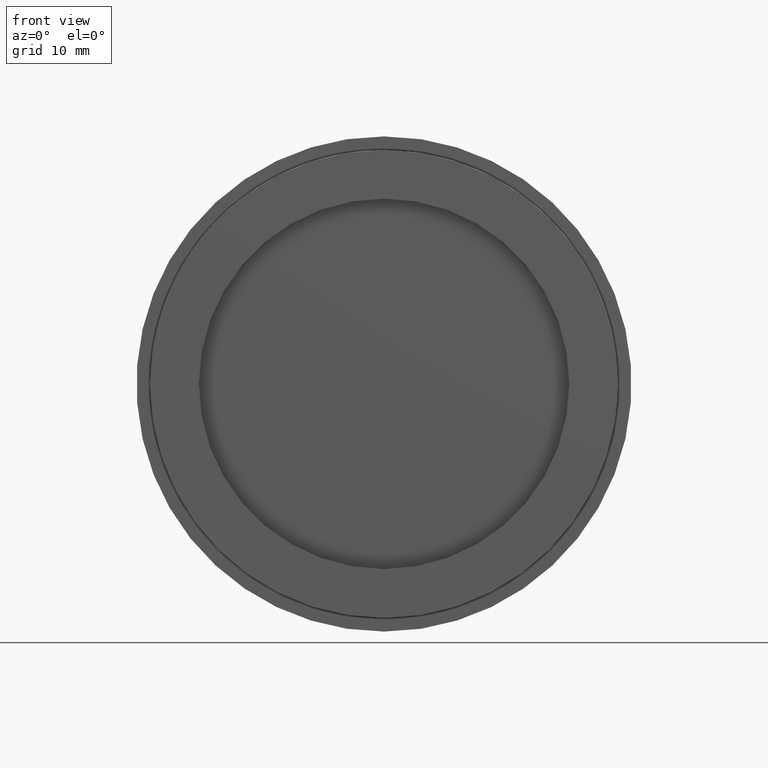
[diagram: clean part render]
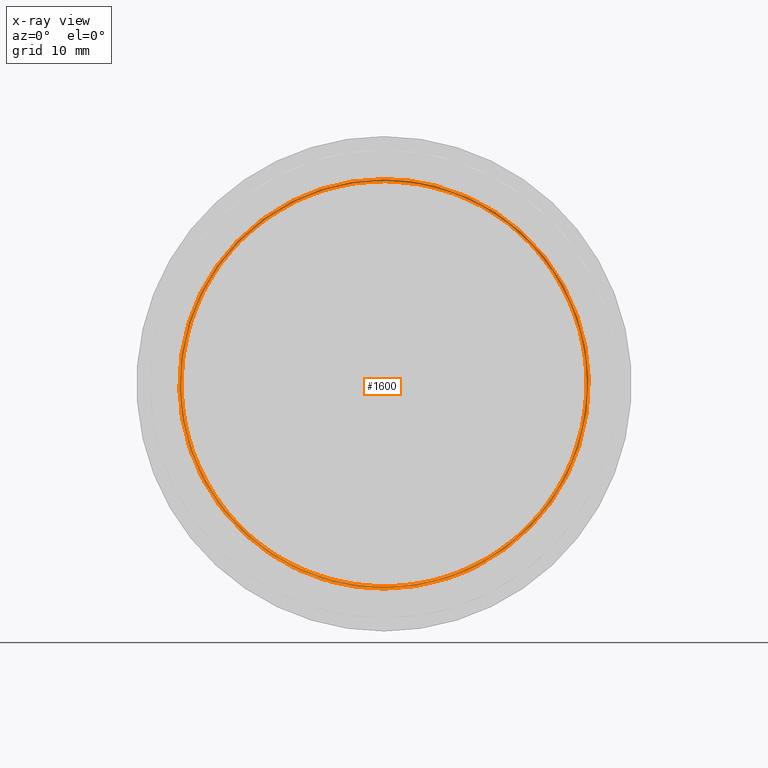
[diagram: x-ray — body ghosted, one internal face saturated and labeled with its STEP entity id]
A machine part, front view, then the same camera in x-ray: the body is ghosted and one INTERNAL B-rep face — a face not visible from any outside direction — is saturated and labeled: STEP entity #1600.
In plain terms, the highlighted face is a freeform B-spline surface patch.
Its self-contained STEP definition (entity closure, byte-faithful):
#7 = CARTESIAN_POINT ( 'NONE',  ( 8.698484809834996057, 14.48781250086715389, -21.00000000000000711 ) ) ;
#21 = CARTESIAN_POINT ( 'NONE',  ( -14.84924240491749536, 11.06593750086715033, 14.84924240491750247 ) ) ;
#23 = CARTESIAN_POINT ( 'NONE',  ( -1.285879139104720831E-15, 11.53468750086715211, -21.00000000000000000 ) ) ;
#36 =( BOUNDED_CURVE ( )  B_SPLINE_CURVE ( 2, ( #5635, #1797, #2957, #4661, #3470, #5669, #157, #1909, #1221 ),
 .UNSPECIFIED., .F., .F. ) 
 B_SPLINE_CURVE_WITH_KNOTS ( ( 3, 2, 2, 2, 3 ),
 ( 0.8749999999999997780, 0.8874999999999997335, 0.8999999999999996891, 0.9124999999999996447, 0.9249999999999997113 ),
 .UNSPECIFIED. ) 
 CURVE ( )  GEOMETRIC_REPRESENTATION_ITEM ( )  RATIONAL_B_SPLINE_CURVE ( ( 1.000000000000001332, 0.9238795325112854062, 1.000000000000000000, 0.9238795325112867385, 1.000000000000000000, 0.9238795325112867385, 1.000000000000000000, 0.9238795325112887369, 0.9999999999999980016 ) ) 
 REPRESENTATION_ITEM ( '' )  );
#45 = CARTESIAN_POINT ( 'NONE',  ( 8.698484809835008491, 14.95656250086715389, 21.00000000000000000 ) ) ;
#55 = ORIENTED_EDGE ( 'NONE', *, *, #1098, .T. ) ;
#56 = CARTESIAN_POINT ( 'NONE',  ( -1.285879139104720831E-15, 13.78468750086715211, -21.00000000000000000 ) ) ;
#58 = CARTESIAN_POINT ( 'NONE',  ( 8.698484809835006715, 11.20656250086715744, 20.99999999999999645 ) ) ;
#73 = EDGE_CURVE ( 'NONE', #6714, #3085, #2393, .T. ) ;
#80 = CARTESIAN_POINT ( 'NONE',  ( -21.00000000000000000, 14.76906250086715211, 8.698484809835010267 ) ) ;
#84 = CARTESIAN_POINT ( 'NONE',  ( -1.285879139104720831E-15, 16.03468750086715389, -21.00000000000000000 ) ) ;
#85 = CARTESIAN_POINT ( 'NONE',  ( 14.72772475024013694, 13.60265625043357574, 14.72772475024013339 ) ) ;
#117 = CARTESIAN_POINT ( 'NONE',  ( -21.00000000000000000, 12.47218750086715211, 0.000000000000000000 ) ) ;
#122 = CARTESIAN_POINT ( 'NONE',  ( 14.72772475024013339, 14.54015625043357751, -14.72772475024013517 ) ) ;
#145 = CARTESIAN_POINT ( 'NONE',  ( -20.82814808468750201, 9.571406250433577512, 0.000000000000000000 ) ) ;
#151 = CARTESIAN_POINT ( 'NONE',  ( 21.00000000000000711, 12.89406250086715211, -8.698484809834999609 ) ) ;
#155 = CARTESIAN_POINT ( 'NONE',  ( 20.82814808468750556, 14.49328125043357751, -8.627301415792770101 ) ) ;
#157 = CARTESIAN_POINT ( 'NONE',  ( -14.84924240491749892, 9.378437500867153886, -14.84924240491749892 ) ) ;
#186 = CARTESIAN_POINT ( 'NONE',  ( 21.00000000000000000, 12.84718750086715211, -2.571758278209441661E-15 ) ) ;
#188 = CARTESIAN_POINT ( 'NONE',  ( -1.285879139104720831E-15, 9.284687500867153886, -21.00000000000000000 ) ) ;
#190 = CARTESIAN_POINT ( 'NONE',  ( -20.82814808468750201, 14.07140625043357574, 0.000000000000000000 ) ) ;
#196 = CARTESIAN_POINT ( 'NONE',  ( -20.82814808468750201, 14.82140625043357751, 0.000000000000000000 ) ) ;
#222 = CARTESIAN_POINT ( 'NONE',  ( -21.00000000000000711, 11.67531250086715389, -8.698484809834996057 ) ) ;
#227 = CARTESIAN_POINT ( 'NONE',  ( -8.627301415792768324, 13.18078125043357574, -20.82814808468750556 ) ) ;
#246 = CARTESIAN_POINT ( 'NONE',  ( 8.698484809835067111, 10.45656250086715566, 20.99999999999993960 ) ) ;
#260 = CARTESIAN_POINT ( 'NONE',  ( 8.698484809835008491, 11.95656250086715389, 21.00000000000000000 ) ) ;
#264 = CARTESIAN_POINT ( 'NONE',  ( -14.72772475024012984, 10.41515625043357751, 14.72772475024013694 ) ) ;
#287 = CARTESIAN_POINT ( 'NONE',  ( 3.857637417314162689E-15, 13.40968750086715389, 21.00000000000000000 ) ) ;
#292 = CARTESIAN_POINT ( 'NONE',  ( -1.285879139104720831E-15, 10.78468750086715033, -21.00000000000000000 ) ) ;
#296 = CARTESIAN_POINT ( 'NONE',  ( -20.82814808468750556, 9.524531250433575735, -8.627301415792766548 ) ) ;
#310 =( BOUNDED_CURVE ( )  B_SPLINE_CURVE ( 2, ( #6205, #1239, #5652, #690, #2908, #1891, #2975, #5112, #5183 ),
 .UNSPECIFIED., .F., .T. ) 
 B_SPLINE_CURVE_WITH_KNOTS ( ( 3, 2, 2, 2, 3 ),
 ( 0.2749999999999999667, 0.2874999999999999223, 0.2999999999999999334, 0.3125000000000000000, 0.3250000000000000111 ),
 .UNSPECIFIED. ) 
 CURVE ( )  GEOMETRIC_REPRESENTATION_ITEM ( )  RATIONAL_B_SPLINE_CURVE ( ( 1.000000000000000444, 0.9238795325112864054, 1.000000000000000000, 0.9238795325112867385, 1.000000000000000000, 0.9238795325112867385, 1.000000000000000000, 0.9238795325112867385, 1.000000000000000000 ) ) 
 REPRESENTATION_ITEM ( '' )  );
#326 = CARTESIAN_POINT ( 'NONE',  ( -8.698484809834997833, 10.83156250086715566, -21.00000000000000711 ) ) ;
#330 = CARTESIAN_POINT ( 'NONE',  ( 14.72772475024013694, 9.852656250433575735, 14.72772475024013339 ) ) ;
#337 = CARTESIAN_POINT ( 'NONE',  ( -14.72772475024012984, 15.66515625043357574, 14.72772475024013694 ) ) ;
#359 = ORIENTED_EDGE ( 'NONE', *, *, #4692, .T. ) ;
#362 = CARTESIAN_POINT ( 'NONE',  ( 8.627301415792766548, 15.33703125043357574, -20.82814808468750556 ) ) ;
#366 = CARTESIAN_POINT ( 'NONE',  ( 20.82814808468750911, 11.39953125043357751, 8.627301415792762995 ) ) ;
#374 = CARTESIAN_POINT ( 'NONE',  ( -1.275356244203981135E-15, 12.38390625043357751, -20.82814808468750201 ) ) ;
#397 = CARTESIAN_POINT ( 'NONE',  ( 21.00000000000000711, 10.55031250086715211, 8.698484809834992504 ) ) ;
#402 = CARTESIAN_POINT ( 'NONE',  ( -14.72772475024013517, 9.477656250433577512, -14.72772475024013517 ) ) ;
#411 = CARTESIAN_POINT ( 'NONE',  ( -14.72772475024013517, 13.97765625043357574, -14.72772475024013517 ) ) ;
#429 = CARTESIAN_POINT ( 'NONE',  ( -14.84924240491749892, 13.12843750086715389, -14.84924240491749892 ) ) ;
#433 = CARTESIAN_POINT ( 'NONE',  ( -21.00000000000000711, 10.92531250086715211, -8.698484809834996057 ) ) ;
#446 = CARTESIAN_POINT ( 'NONE',  ( 20.82814808468750556, 12.99328125043357751, -8.627301415792770101 ) ) ;
#465 = ORIENTED_EDGE ( 'NONE', *, *, #4922, .T. ) ;
#480 = CARTESIAN_POINT ( 'NONE',  ( 14.72772475024013339, 11.54015625043357574, -14.72772475024013517 ) ) ;
#487 = CARTESIAN_POINT ( 'NONE',  ( -1.285879139104720831E-15, 12.28468750086715211, -21.00000000000000000 ) ) ;
#505 = CARTESIAN_POINT ( 'NONE',  ( 3.857637417314162689E-15, 12.65968750086715211, 21.00000000000000000 ) ) ;
#510 = CARTESIAN_POINT ( 'NONE',  ( 14.84924240491750247, 15.75343750086715211, 14.84924240491749714 ) ) ;
#514 = CARTESIAN_POINT ( 'NONE',  ( 8.627301415792780759, 12.05578125043357751, 20.82814808468749845 ) ) ;
#516 = EDGE_CURVE ( 'NONE', #601, #5723, #5771, .T. ) ;
#523 = CARTESIAN_POINT ( 'NONE',  ( 8.698484809835004938, 15.98781250086715389, -20.99999999999998934 ) ) ;
#525 = CARTESIAN_POINT ( 'NONE',  ( 3.857637417314162689E-15, 11.15968750086715211, 21.00000000000000000 ) ) ;
#547 = CARTESIAN_POINT ( 'NONE',  ( -1.285879139104720831E-15, 10.03468750086715211, -21.00000000000000000 ) ) ;
#548 = CARTESIAN_POINT ( 'NONE',  ( -21.00000000000000711, 14.67531250086715566, -8.698484809834996057 ) ) ;
#552 = CARTESIAN_POINT ( 'NONE',  ( -14.72772475024012984, 10.41515625043357751, 14.72772475024013694 ) ) ;
#559 = CARTESIAN_POINT ( 'NONE',  ( -1.285879139104720831E-15, 12.28468750086715211, -21.00000000000000000 ) ) ;
#562 = CARTESIAN_POINT ( 'NONE',  ( -14.84924240491749892, 10.87843750086715033, -14.84924240491749892 ) ) ;
#564 = CARTESIAN_POINT ( 'NONE',  ( 3.857637417314162689E-15, 14.15968750086715211, 21.00000000000000000 ) ) ;
#568 = CARTESIAN_POINT ( 'NONE',  ( -1.285879139104720831E-15, 15.28468750086715211, -21.00000000000000000 ) ) ;
#569 = CARTESIAN_POINT ( 'NONE',  ( -20.82814808468749845, 14.86828125043357574, 8.627301415792780759 ) ) ;
#590 = CARTESIAN_POINT ( 'NONE',  ( 21.00000000000000711, 14.39406250086715033, -8.698484809834999609 ) ) ;
#601 = VERTEX_POINT ( 'NONE', #6820 ) ;
#607 = CARTESIAN_POINT ( 'NONE',  ( 8.698484809835056453, 15.23781250086715033, -20.99999999999994316 ) ) ;
#624 = EDGE_CURVE ( 'NONE', #1838, #6238, #310, .T. ) ;
#629 = CARTESIAN_POINT ( 'NONE',  ( -20.82814808468750201, 16.32140625043357574, 0.000000000000000000 ) ) ;
#630 = CARTESIAN_POINT ( 'NONE',  ( 20.82814808468750201, 14.44640625043357751, -2.550712488407962269E-15 ) ) ;
#663 = CARTESIAN_POINT ( 'NONE',  ( 21.00000000000000711, 12.80031250086715211, 8.698484809834992504 ) ) ;
#668 = CARTESIAN_POINT ( 'NONE',  ( 8.627301415792766548, 14.58703125043357751, -20.82814808468750556 ) ) ;
#670 = CARTESIAN_POINT ( 'NONE',  ( 8.698484809834997833, 13.73781250086715211, -21.00000000000000355 ) ) ;
#683 = CARTESIAN_POINT ( 'NONE',  ( 21.00000000000000355, 15.05031250086715566, 8.698484809834994280 ) ) ;
#690 = CARTESIAN_POINT ( 'NONE',  ( -20.99999999999999645, 14.01906250086715211, 8.698484809835010267 ) ) ;
#695 = CARTESIAN_POINT ( 'NONE',  ( 20.82814808468751266, 11.39953125043357751, 8.627301415792762995 ) ) ;
#702 = CARTESIAN_POINT ( 'NONE',  ( -14.84924240491749536, 12.56593750086715211, 14.84924240491750247 ) ) ;
#706 = CARTESIAN_POINT ( 'NONE',  ( 5.626931915519343796, 9.254364698757784780, -21.00000000000011724 ) ) ;
#709 = CARTESIAN_POINT ( 'NONE',  ( 20.82814808468750911, 12.14953125043357574, 8.627301415792762995 ) ) ;
#715 = CARTESIAN_POINT ( 'NONE',  ( -14.84924240491749892, 15.37843750086715211, -14.84924240491749892 ) ) ;
#719 = CARTESIAN_POINT ( 'NONE',  ( 3.857637417314162689E-15, 11.15968750086715211, 21.00000000000000000 ) ) ;
#733 = CARTESIAN_POINT ( 'NONE',  ( 14.72772475024013339, 10.04015625043357574, -14.72772475024013517 ) ) ;
#739 = CARTESIAN_POINT ( 'NONE',  ( 21.00000000000000711, 12.14406250086715211, -8.698484809834999609 ) ) ;
#741 = CARTESIAN_POINT ( 'NONE',  ( 10.49999818110832983, 9.221824323447254557, -18.18653452961068950 ) ) ;
#743 = CARTESIAN_POINT ( 'NONE',  ( 3.826068732611943404E-15, 14.25890625043357751, 20.82814808468750201 ) ) ;
#767 = VERTEX_POINT ( 'NONE', #6529 ) ;
#768 = CARTESIAN_POINT ( 'NONE',  ( -8.627301415792771877, 10.46203125043357751, 20.82814808468749845 ) ) ;
#774 = CARTESIAN_POINT ( 'NONE',  ( 8.698484809834996057, 12.23781250086715211, -21.00000000000000711 ) ) ;
#778 = CARTESIAN_POINT ( 'NONE',  ( 8.627301415792780759, 14.30578125043357574, 20.82814808468749845 ) ) ;
#803 = ORIENTED_EDGE ( 'NONE', *, *, #73, .T. ) ;
#804 = CARTESIAN_POINT ( 'NONE',  ( 20.82814808468751266, 10.64953125043357751, 8.627301415792762995 ) ) ;
#812 = CARTESIAN_POINT ( 'NONE',  ( 8.698484809835008491, 13.45656250086715033, 21.00000000000000000 ) ) ;
#816 = CARTESIAN_POINT ( 'NONE',  ( -8.627301415792768324, 10.18078125043357929, -20.82814808468750556 ) ) ;
#832 =( BOUNDED_CURVE ( )  B_SPLINE_CURVE ( 2, ( #6277, #5259, #3660, #5832, #1309, #4602, #6382, #3043, #1416 ),
 .UNSPECIFIED., .F., .T. ) 
 B_SPLINE_CURVE_WITH_KNOTS ( ( 3, 2, 2, 2, 3 ),
 ( 0.1749999999999999056, 0.1874999999999999167, 0.1999999999999999556, 0.2124999999999999389, 0.2249999999999999500 ),
 .UNSPECIFIED. ) 
 CURVE ( )  GEOMETRIC_REPRESENTATION_ITEM ( )  RATIONAL_B_SPLINE_CURVE ( ( 1.000000000000000444, 0.9238795325112861834, 1.000000000000000000, 0.9238795325112867385, 1.000000000000000000, 0.9238795325112867385, 1.000000000000000000, 0.9238795325112870716, 0.9999999999999996669 ) ) 
 REPRESENTATION_ITEM ( '' )  );
#837 = CARTESIAN_POINT ( 'NONE',  ( 21.00000000000000000, 10.59718750086715211, -2.571758278209441661E-15 ) ) ;
#846 = CARTESIAN_POINT ( 'NONE',  ( 3.857637417314162689E-15, 11.90968750086715211, 21.00000000000000000 ) ) ;
#851 = CARTESIAN_POINT ( 'NONE',  ( 5.626932196903778660, 9.254364697241436843, -21.00000000000000355 ) ) ;
#855 = CARTESIAN_POINT ( 'NONE',  ( -8.627301415792768324, 10.93078125043357929, -20.82814808468750556 ) ) ;
#863 = CARTESIAN_POINT ( 'NONE',  ( 20.82814808468750201, 15.94640625043357574, -2.550712488407962269E-15 ) ) ;
#882 = CARTESIAN_POINT ( 'NONE',  ( 3.826068732611943404E-15, 15.75890625043357574, 20.82814808468750201 ) ) ;
#886 = CARTESIAN_POINT ( 'NONE',  ( -20.82814808468750201, 10.32140625043357751, 0.000000000000000000 ) ) ;
#893 = CARTESIAN_POINT ( 'NONE',  ( -8.627301415792771877, 15.71203125043357751, 20.82814808468749845 ) ) ;
#915 = CARTESIAN_POINT ( 'NONE',  ( -8.627301415792768324, 15.43078125043357574, -20.82814808468750556 ) ) ;
#919 = CARTESIAN_POINT ( 'NONE',  ( -20.82814808468750556, 11.02453125043357574, -8.627301415792766548 ) ) ;
#929 = CARTESIAN_POINT ( 'NONE',  ( -20.82814808468749845, 13.36828125043357751, 8.627301415792780759 ) ) ;
#953 = CARTESIAN_POINT ( 'NONE',  ( -14.84924240491749892, 10.87843750086715033, -14.84924240491749892 ) ) ;
#955 = CARTESIAN_POINT ( 'NONE',  ( 8.698484809835127507, 9.706562500867153886, 20.99999999999988276 ) ) ;
#957 = CARTESIAN_POINT ( 'NONE',  ( -1.275356244203981135E-15, 10.88390625043357574, -20.82814808468750201 ) ) ;
#963 = CARTESIAN_POINT ( 'NONE',  ( 3.857637417314162689E-15, 9.659687500867153886, 21.00000000000000000 ) ) ;
#965 = CARTESIAN_POINT ( 'NONE',  ( -8.627301415792771877, 11.96203125043357574, 20.82814808468749845 ) ) ;
#987 = CARTESIAN_POINT ( 'NONE',  ( 20.82814808468750201, 15.94640625043357574, -2.550712488407962269E-15 ) ) ;
#998 = CARTESIAN_POINT ( 'NONE',  ( 20.82814808468751266, 14.39953125043357929, 8.627301415792762995 ) ) ;
#1006 = CARTESIAN_POINT ( 'NONE',  ( -1.285879139104720831E-15, 11.53468750086715211, -21.00000000000000000 ) ) ;
#1028 = CARTESIAN_POINT ( 'NONE',  ( 3.857637417314162689E-15, 10.40968750086715211, 21.00000000000000000 ) ) ;
#1029 = CARTESIAN_POINT ( 'NONE',  ( -21.00000000000000711, 16.17531250086715389, -8.698484809834996057 ) ) ;
#1032 = CARTESIAN_POINT ( 'NONE',  ( -8.627301415792768324, 11.68078125043357929, -20.82814808468750556 ) ) ;
#1063 = CARTESIAN_POINT ( 'NONE',  ( 21.00000000000000355, 12.80031250086715211, 8.698484809834994280 ) ) ;
#1072 = CARTESIAN_POINT ( 'NONE',  ( 8.627301415792766548, 13.08703125043357574, -20.82814808468750556 ) ) ;
#1098 = EDGE_CURVE ( 'NONE', #5312, #4556, #832, .T. ) ;
#1109 = CARTESIAN_POINT ( 'NONE',  ( -20.82814808468750556, 11.02453125043357751, -8.627301415792766548 ) ) ;
#1125 = CARTESIAN_POINT ( 'NONE',  ( -14.72772475024013517, 14.72765625043357751, -14.72772475024013517 ) ) ;
#1139 = CARTESIAN_POINT ( 'NONE',  ( -14.84924240491749536, 15.56593750086715211, 14.84924240491750247 ) ) ;
#1179 = CARTESIAN_POINT ( 'NONE',  ( -14.84924240491749892, 16.12843750086715389, -14.84924240491749892 ) ) ;
#1184 = CARTESIAN_POINT ( 'NONE',  ( 14.72772475024013339, 13.79015625043357574, -14.72772475024013517 ) ) ;
#1215 = CARTESIAN_POINT ( 'NONE',  ( -8.698484809834997833, 13.83156250086715211, -21.00000000000000711 ) ) ;
#1219 = CARTESIAN_POINT ( 'NONE',  ( 8.627301415792780759, 13.55578125043357751, 20.82814808468749845 ) ) ;
#1221 = CARTESIAN_POINT ( 'NONE',  ( -1.285879139104720831E-15, 9.284687500867153886, -21.00000000000000000 ) ) ;
#1226 = ORIENTED_EDGE ( 'NONE', *, *, #4166, .T. ) ;
#1239 = CARTESIAN_POINT ( 'NONE',  ( -8.698484809834974740, 14.11281250086715211, 21.00000000000002842 ) ) ;
#1244 = CARTESIAN_POINT ( 'NONE',  ( -14.72772475024013517, 10.22765625043357574, -14.72772475024013517 ) ) ;
#1250 = CARTESIAN_POINT ( 'NONE',  ( 21.00000000000000000, 12.09718750086715211, -2.571758278209441661E-15 ) ) ;
#1255 = CARTESIAN_POINT ( 'NONE',  ( 14.72772475024013339, 12.29015625043357751, -14.72772475024013517 ) ) ;
#1277 = CARTESIAN_POINT ( 'NONE',  ( 20.82814808468750201, 9.946406250433575735, -2.550712488407962269E-15 ) ) ;
#1283 = CARTESIAN_POINT ( 'NONE',  ( -21.00000000000000000, 13.26906250086715033, 8.698484809835010267 ) ) ;
#1287 = CARTESIAN_POINT ( 'NONE',  ( -8.627301415792768324, 11.68078125043358106, -20.82814808468750556 ) ) ;
#1309 = CARTESIAN_POINT ( 'NONE',  ( -21.00000000000000000, 14.72218750086715211, 0.000000000000000000 ) ) ;
#1314 = CARTESIAN_POINT ( 'NONE',  ( -14.72772475024013517, 9.477656250433577512, -14.72772475024013517 ) ) ;
#1320 = CARTESIAN_POINT ( 'NONE',  ( -14.84924240491749892, 13.12843750086715389, -14.84924240491749892 ) ) ;
#1325 = CARTESIAN_POINT ( 'NONE',  ( 14.72772475024013694, 12.10265625043357574, 14.72772475024013339 ) ) ;
#1331 = EDGE_CURVE ( 'NONE', #2273, #5073, #7137, .T. ) ;
#1351 = CARTESIAN_POINT ( 'NONE',  ( -1.275356244203981135E-15, 9.383906250433577512, -20.82814808468750201 ) ) ;
#1357 = CARTESIAN_POINT ( 'NONE',  ( 14.84924240491750247, 13.50343750086715211, 14.84924240491749714 ) ) ;
#1366 = CARTESIAN_POINT ( 'NONE',  ( -1.285879139104720831E-15, 15.28468750086715211, -21.00000000000000000 ) ) ;
#1368 = CARTESIAN_POINT ( 'NONE',  ( 14.72772475024013339, 16.04015625043357574, -14.72772475024013517 ) ) ;
#1380 =( BOUNDED_CURVE ( )  B_SPLINE_CURVE ( 2, ( #5598, #3822, #6144, #2188, #84 ),
 .UNSPECIFIED., .F., .T. ) 
 B_SPLINE_CURVE_WITH_KNOTS ( ( 3, 2, 3 ),
 ( 0.000000000000000000, 0.01250000000000001110, 0.02500000000000002220 ),
 .UNSPECIFIED. ) 
 CURVE ( )  GEOMETRIC_REPRESENTATION_ITEM ( )  RATIONAL_B_SPLINE_CURVE ( ( 1.000000000000000000, 0.9238795325112867385, 1.000000000000000000, 0.9238795325112866275, 1.000000000000000000 ) ) 
 REPRESENTATION_ITEM ( '' )  );
#1388 = CARTESIAN_POINT ( 'NONE',  ( -8.698484809835058229, 13.08156250086715211, -20.99999999999994316 ) ) ;
#1394 = CARTESIAN_POINT ( 'NONE',  ( -14.84924240491749536, 10.31593750086715211, 14.84924240491750247 ) ) ;
#1416 = CARTESIAN_POINT ( 'NONE',  ( -1.285879139104720831E-15, 14.53468750086715211, -21.00000000000000000 ) ) ;
#1421 = CARTESIAN_POINT ( 'NONE',  ( 14.84924240491750247, 14.25343750086715211, 14.84924240491749714 ) ) ;
#1426 = CARTESIAN_POINT ( 'NONE',  ( -14.72772475024013517, 16.22765625043357574, -14.72772475024013517 ) ) ;
#1430 = CARTESIAN_POINT ( 'NONE',  ( -8.627301415792771877, 11.21203125043357929, 20.82814808468749845 ) ) ;
#1454 = CARTESIAN_POINT ( 'NONE',  ( -1.285879139104720831E-15, 10.78468750086715033, -21.00000000000000000 ) ) ;
#1460 = CARTESIAN_POINT ( 'NONE',  ( 3.857637417314162689E-15, 9.659687500867153886, 21.00000000000000000 ) ) ;
#1464 = CARTESIAN_POINT ( 'NONE',  ( 8.627301415792780759, 10.55578125043357929, 20.82814808468749845 ) ) ;
#1473 = CARTESIAN_POINT ( 'NONE',  ( 20.82814808468750556, 15.99328125043357751, -8.627301415792770101 ) ) ;
#1488 = CARTESIAN_POINT ( 'NONE',  ( -1.285879139104720831E-15, 14.53468750086715211, -21.00000000000000000 ) ) ;
#1492 = CARTESIAN_POINT ( 'NONE',  ( -21.00000000000000000, 10.26906250086715389, 8.698484809835010267 ) ) ;
#1496 = CARTESIAN_POINT ( 'NONE',  ( -8.627301415792771877, 9.712031250433575735, 20.82814808468749845 ) ) ;
#1506 = CARTESIAN_POINT ( 'NONE',  ( -20.82814808468749845, 14.11828125043357574, 8.627301415792780759 ) ) ;
#1527 = CARTESIAN_POINT ( 'NONE',  ( -20.99999999999999645, 13.26906250086715211, 8.698484809835010267 ) ) ;
#1530 = CARTESIAN_POINT ( 'NONE',  ( -20.82814808468750201, 16.32140625043357574, 0.000000000000000000 ) ) ;
#1543 = CARTESIAN_POINT ( 'NONE',  ( -20.82814808468750201, 14.07140625043357574, 0.000000000000000000 ) ) ;
#1568 = CARTESIAN_POINT ( 'NONE',  ( 14.84924240491750247, 12.75343750086715211, 14.84924240491749714 ) ) ;
#1574 = CARTESIAN_POINT ( 'NONE',  ( 8.627301415792780759, 12.80578125043357929, 20.82814808468749845 ) ) ;
#1580 = CARTESIAN_POINT ( 'NONE',  ( 8.698484809834935660, 12.23781250086715211, -21.00000000000006040 ) ) ;
#1600 = ADVANCED_FACE ( 'NONE', ( #4511 ), #2772, .F. ) ;
#1610 = CARTESIAN_POINT ( 'NONE',  ( -1.275356244203981135E-15, 13.88390625043357574, -20.82814808468750201 ) ) ;
#1648 = CARTESIAN_POINT ( 'NONE',  ( -20.82814808468750556, 13.27453125043357751, -8.627301415792766548 ) ) ;
#1656 = CARTESIAN_POINT ( 'NONE',  ( -21.00000000000000355, 12.42531250086715211, -8.698484809834997833 ) ) ;
#1658 = CARTESIAN_POINT ( 'NONE',  ( 21.00000000000000355, 15.80031250086715389, 8.698484809834994280 ) ) ;
#1665 = CARTESIAN_POINT ( 'NONE',  ( -8.627301415792771877, 14.96203125043357751, 20.82814808468749845 ) ) ;
#1682 = CARTESIAN_POINT ( 'NONE',  ( 14.84924240491749714, 14.44093750086715211, -14.84924240491749892 ) ) ;
#1690 = CARTESIAN_POINT ( 'NONE',  ( -14.84924240491749892, 12.37843750086715211, -14.84924240491749892 ) ) ;
#1696 = CARTESIAN_POINT ( 'NONE',  ( 14.84924240491749714, 11.44093750086715211, -14.84924240491749892 ) ) ;
#1716 = CARTESIAN_POINT ( 'NONE',  ( 8.698484809835008491, 14.20656250086715211, 21.00000000000000000 ) ) ;
#1753 = CARTESIAN_POINT ( 'NONE',  ( -14.84924240491749892, 10.12843750086715211, -14.84924240491749892 ) ) ;
#1754 = CARTESIAN_POINT ( 'NONE',  ( 3.857637417314162689E-15, 15.65968750086715211, 21.00000000000000000 ) ) ;
#1759 = CARTESIAN_POINT ( 'NONE',  ( -20.82814808468749845, 14.11828125043357574, 8.627301415792780759 ) ) ;
#1778 = EDGE_CURVE ( 'NONE', #2473, #4989, #2821, .T. ) ;
#1791 = CARTESIAN_POINT ( 'NONE',  ( 14.84924240491750247, 12.00343750086715211, 14.84924240491749714 ) ) ;
#1795 = CARTESIAN_POINT ( 'NONE',  ( 8.627301415792766548, 13.08703125043357574, -20.82814808468750556 ) ) ;
#1797 = CARTESIAN_POINT ( 'NONE',  ( -8.698484809834884146, 9.612812500867153886, 21.00000000000011724 ) ) ;
#1800 = CARTESIAN_POINT ( 'NONE',  ( -8.698484809834942766, 12.61281250086715211, 21.00000000000005684 ) ) ;
#1801 =( BOUNDED_CURVE ( )  B_SPLINE_CURVE ( 2, ( #3090, #4221, #7089, #7049, #2077, #3779, #4864, #955, #2113 ),
 .UNSPECIFIED., .F., .T. ) 
 B_SPLINE_CURVE_WITH_KNOTS ( ( 3, 2, 2, 2, 3 ),
 ( 0.8249999999999999556, 0.8374999999999999112, 0.8499999999999998668, 0.8624999999999998224, 0.8749999999999997780 ),
 .UNSPECIFIED. ) 
 CURVE ( )  GEOMETRIC_REPRESENTATION_ITEM ( )  RATIONAL_B_SPLINE_CURVE ( ( 1.000000000000000000, 0.9238795325112867385, 1.000000000000000000, 0.9238795325112867385, 1.000000000000000000, 0.9238795325112867385, 1.000000000000000000, 0.9238795325112880708, 0.9999999999999986677 ) ) 
 REPRESENTATION_ITEM ( '' )  );
#1828 = CARTESIAN_POINT ( 'NONE',  ( 3.857637417314162689E-15, 12.65968750086715211, 21.00000000000000000 ) ) ;
#1832 = CARTESIAN_POINT ( 'NONE',  ( -14.72772475024013517, 11.72765625043357574, -14.72772475024013517 ) ) ;
#1837 = CARTESIAN_POINT ( 'NONE',  ( -21.00000000000000000, 15.47218750086715211, 0.000000000000000000 ) ) ;
#1838 = VERTEX_POINT ( 'NONE', #564 ) ;
#1851 = EDGE_CURVE ( 'NONE', #6088, #3324, #3751, .T. ) ;
#1857 = CARTESIAN_POINT ( 'NONE',  ( 3.826068732611943404E-15, 11.25890625043357574, 20.82814808468750201 ) ) ;
#1864 = CARTESIAN_POINT ( 'NONE',  ( 21.00000000000000711, 13.55031250086715389, 8.698484809834992504 ) ) ;
#1869 = CARTESIAN_POINT ( 'NONE',  ( 8.627301415792766548, 12.33703125043357751, -20.82814808468750556 ) ) ;
#1872 = CARTESIAN_POINT ( 'NONE',  ( 8.698484809835097309, 13.45656250086715566, 20.99999999999991118 ) ) ;
#1878 = CARTESIAN_POINT ( 'NONE',  ( -20.82814808468750556, 14.77453125043357929, -8.627301415792766548 ) ) ;
#1891 = CARTESIAN_POINT ( 'NONE',  ( -21.00000000000000355, 13.92531250086715211, -8.698484809834997833 ) ) ;
#1896 = CARTESIAN_POINT ( 'NONE',  ( 3.826068732611943404E-15, 10.50890625043357751, 20.82814808468750201 ) ) ;
#1902 = CARTESIAN_POINT ( 'NONE',  ( -21.00000000000000000, 13.22218750086715389, 0.000000000000000000 ) ) ;
#1907 = CARTESIAN_POINT ( 'NONE',  ( -20.82814808468749845, 12.61828125043357751, 8.627301415792780759 ) ) ;
#1909 = CARTESIAN_POINT ( 'NONE',  ( -8.698484809835177245, 9.331562500867155663, -20.99999999999982236 ) ) ;
#1912 = CARTESIAN_POINT ( 'NONE',  ( 10.49999818110832983, 9.221824323447254557, -18.18653452961068950 ) ) ;
#1931 = CARTESIAN_POINT ( 'NONE',  ( -20.82814808468750556, 10.27453125043357751, -8.627301415792766548 ) ) ;
#1938 = CARTESIAN_POINT ( 'NONE',  ( -8.698484809834997833, 13.08156250086715211, -21.00000000000000711 ) ) ;
#1942 = CARTESIAN_POINT ( 'NONE',  ( -20.82814808468750201, 11.07140625043357574, 0.000000000000000000 ) ) ;
#1949 = CARTESIAN_POINT ( 'NONE',  ( 3.826068732611943404E-15, 15.75890625043357574, 20.82814808468750201 ) ) ;
#1971 = CARTESIAN_POINT ( 'NONE',  ( 20.82814808468750911, 15.89953125043357929, 8.627301415792762995 ) ) ;
#1975 = CARTESIAN_POINT ( 'NONE',  ( 3.826068732611943404E-15, 9.758906250433577512, 20.82814808468750201 ) ) ;
#1981 = CARTESIAN_POINT ( 'NONE',  ( -21.00000000000000355, 15.42531250086715566, -8.698484809834997833 ) ) ;
#1984 = CARTESIAN_POINT ( 'NONE',  ( 20.82814808468750556, 14.49328125043357751, -8.627301415792770101 ) ) ;
#2006 = CARTESIAN_POINT ( 'NONE',  ( -20.82814808468750201, 15.57140625043357574, 0.000000000000000000 ) ) ;
#2010 = CARTESIAN_POINT ( 'NONE',  ( 20.82814808468750201, 10.69640625043357751, -2.550712488407962269E-15 ) ) ;
#2017 = ORIENTED_EDGE ( 'NONE', *, *, #516, .F. ) ;
#2018 = CARTESIAN_POINT ( 'NONE',  ( 14.72772475024013694, 15.85265625043357574, 14.72772475024013339 ) ) ;
#2028 = CARTESIAN_POINT ( 'NONE',  ( 14.84924240491749714, 10.69093750086715211, -14.84924240491749892 ) ) ;
#2035 = CARTESIAN_POINT ( 'NONE',  ( -21.00000000000000355, 13.17531250086715211, -8.698484809834997833 ) ) ;
#2038 = CARTESIAN_POINT ( 'NONE',  ( -21.00000000000000000, 9.519062500867152110, 8.698484809835010267 ) ) ;
#2043 = CARTESIAN_POINT ( 'NONE',  ( -20.82814808468749845, 11.11828125043357574, 8.627301415792780759 ) ) ;
#2052 = CARTESIAN_POINT ( 'NONE',  ( 14.72772475024013694, 14.35265625043357751, 14.72772475024013339 ) ) ;
#2069 = CARTESIAN_POINT ( 'NONE',  ( -14.84924240491749536, 13.31593750086715389, 14.84924240491750247 ) ) ;
#2074 = CARTESIAN_POINT ( 'NONE',  ( -21.00000000000000000, 11.01906250086715211, 8.698484809835010267 ) ) ;
#2077 = CARTESIAN_POINT ( 'NONE',  ( 21.00000000000000000, 9.847187500867152110, -2.571758278209441661E-15 ) ) ;
#2088 = CARTESIAN_POINT ( 'NONE',  ( -20.82814808468750556, 11.77453125043357751, -8.627301415792766548 ) ) ;
#2113 = CARTESIAN_POINT ( 'NONE',  ( 3.857637417314162689E-15, 9.659687500867153886, 21.00000000000000000 ) ) ;
#2121 =( BOUNDED_CURVE ( )  B_SPLINE_CURVE ( 2, ( #5855, #2560, #6403, #4666, #6916, #6843, #1368, #1473, #863, #3684, #2018, #5785, #1949, #893, #337, #3099, #4625, #4160, #6300, #6335, #5889, #4773, #5205, #2416, #3581, #6369, #3545, #5748, #6987, #3616, #5822, #2997, #196, #1878, #3068, #5283, #4198, #4736, #6950, #1984, #5313, #998, #2052, #6619, #3138, #6546, #5960, #1506, #1543, #6033, #411, #2631, #1610, #3756, #7167, #3207, #4302, #7024, #6472, #3823, #3787, #3721, #4839, #929, #5419, #1648, #5455, #2189, #4945, #1072, #3860, #446, #5490, #2666, #4402, #1574, #6581, #5348, #4875, #2157, #4807, #7098, #4267, #6511, #374, #5997, #2597, #5926, #2123, #4337, #4368, #514, #3280, #965, #3170, #5384, #7061, #2088, #2735, #1032, #7132, #3242, #480, #2700, #4908, #695, #5523, #4442, #1857, #6210, #2364, #2913, #4039, #1109, #5117, #6244, #6068, #4004, #4647, #3528, #6282, #804, #3458, #6897, #1896, #768, #552, #5656, #6861, #1931, #1244, #3490, #4108, #3315, #733, #4574, #1277, #2230, #2771, #6318, #3564, #5694, #6754, #6789, #145, #3015, #1314, #2945, #1351, #4979, #5155 ),
 .UNSPECIFIED., .F., .F. ) 
 B_SPLINE_CURVE_WITH_KNOTS ( ( 3, 2, 2, 2, 2, 2, 2, 2, 2, 2, 2, 2, 2, 2, 2, 2, 2, 2, 2, 2, 2, 2, 2, 2, 2, 2, 2, 2, 2, 2, 2, 2, 2, 2, 2, 2, 2, 2, 2, 2, 2, 2, 2, 2, 2, 2, 2, 2, 2, 2, 2, 2, 2, 2, 2, 2, 2, 2, 2, 2, 2, 2, 2, 2, 2, 2, 2, 2, 2, 2, 2, 2, 2, 2, 2, 3 ),
 ( 0.000000000000000000, 0.01250000000000000069, 0.02500000000000000139, 0.03749999999999999861, 0.05000000000000000278, 0.06250000000000000000, 0.07499999999999999722, 0.08749999999999999445, 0.1000000000000000056, 0.1125000000000000028, 0.1250000000000000000, 0.1375000000000000111, 0.1499999999999999944, 0.1625000000000000056, 0.1749999999999999889, 0.1875000000000000000, 0.2000000000000000111, 0.2124999999999999944, 0.2250000000000000056, 0.2374999999999999889, 0.2500000000000000000, 0.2625000000000000111, 0.2750000000000000222, 0.2874999999999999778, 0.2999999999999999889, 0.3125000000000000000, 0.3250000000000000111, 0.3375000000000000222, 0.3499999999999999778, 0.3624999999999999889, 0.3750000000000000000, 0.3875000000000000111, 0.4000000000000000222, 0.4124999999999999778, 0.4249999999999999889, 0.4375000000000000000, 0.4500000000000000111, 0.4625000000000000222, 0.4749999999999999778, 0.4874999999999999889, 0.5000000000000000000, 0.5124999999999999556, 0.5250000000000000222, 0.5374999999999998668, 0.5500000000000000444, 0.5625000000000000000, 0.5749999999999999556, 0.5875000000000000222, 0.5999999999999999778, 0.6125000000000000444, 0.6250000000000000000, 0.6374999999999999556, 0.6500000000000000222, 0.6624999999999999778, 0.6750000000000000444, 0.6875000000000000000, 0.6999999999999999556, 0.7125000000000000222, 0.7249999999999999778, 0.7375000000000000444, 0.7500000000000000000, 0.7624999999999999556, 0.7750000000000000222, 0.7874999999999999778, 0.8000000000000000444, 0.8125000000000000000, 0.8249999999999999556, 0.8375000000000000222, 0.8499999999999999778, 0.8625000000000000444, 0.8750000000000000000, 0.8874999999999999556, 0.9000000000000000222, 0.9124999999999999778, 0.9250000000000000444, 0.9333094315606372815 ),
 .UNSPECIFIED. ) 
 CURVE ( )  GEOMETRIC_REPRESENTATION_ITEM ( )  RATIONAL_B_SPLINE_CURVE ( ( 1.000000000000000000, 0.9238795325112867385, 1.000000000000000000, 0.9238795325112867385, 1.000000000000000000, 0.9238795325112867385, 1.000000000000000000, 0.9238795325112867385, 1.000000000000000000, 0.9238795325112867385, 1.000000000000000000, 0.9238795325112867385, 1.000000000000000000, 0.9238795325112867385, 1.000000000000000000, 0.9238795325112867385, 1.000000000000000000, 0.9238795325112867385, 1.000000000000000000, 0.9238795325112867385, 1.000000000000000000, 0.9238795325112867385, 1.000000000000000000, 0.9238795325112867385, 1.000000000000000000, 0.9238795325112867385, 1.000000000000000000, 0.9238795325112867385, 1.000000000000000000, 0.9238795325112867385, 1.000000000000000000, 0.9238795325112867385, 1.000000000000000000, 0.9238795325112867385, 1.000000000000000000, 0.9238795325112867385, 1.000000000000000000, 0.9238795325112867385, 1.000000000000000000, 0.9238795325112867385, 1.000000000000000000, 0.9238795325112867385, 1.000000000000000000, 0.9238795325112867385, 1.000000000000000000, 0.9238795325112867385, 1.000000000000000000, 0.9238795325112867385, 1.000000000000000000, 0.9238795325112867385, 1.000000000000000000, 0.9238795325112867385, 1.000000000000000000, 0.9238795325112867385, 1.000000000000000000, 0.9238795325112867385, 1.000000000000000000, 0.9238795325112867385, 1.000000000000000000, 0.9238795325112867385, 1.000000000000000000, 0.9238795325112867385, 1.000000000000000000, 0.9238795325112867385, 1.000000000000000000, 0.9238795325112867385, 1.000000000000000000, 0.9238795325112867385, 1.000000000000000000, 0.9238795325112867385, 1.000000000000000000, 0.9238795325112867385, 1.000000000000000000, 0.9238795325112867385, 1.000000000000000000, 0.9238795325112867385, 1.000000000000000000, 0.9238795325112867385, 1.000000000000000000, 0.9238795325112867385, 1.000000000000000000, 0.9238795325112867385, 1.000000000000000000, 0.9238795325112867385, 1.000000000000000000, 0.9238795325112867385, 1.000000000000000000, 0.9238795325112867385, 1.000000000000000000, 0.9238795325112867385, 1.000000000000000000, 0.9238795325112867385, 1.000000000000000000, 0.9238795325112867385, 1.000000000000000000, 0.9238795325112867385, 1.000000000000000000, 0.9238795325112867385, 1.000000000000000000, 0.9238795325112867385, 1.000000000000000000, 0.9238795325112867385, 1.000000000000000000, 0.9238795325112867385, 1.000000000000000000, 0.9238795325112867385, 1.000000000000000000, 0.9238795325112867385, 1.000000000000000000, 0.9238795325112867385, 1.000000000000000000, 0.9238795325112867385, 1.000000000000000000, 0.9238795325112867385, 1.000000000000000000, 0.9238795325112867385, 1.000000000000000000, 0.9238795325112867385, 1.000000000000000000, 0.9238795325112867385, 1.000000000000000000, 0.9238795325112867385, 1.000000000000000000, 0.9238795325112867385, 1.000000000000000000, 0.9238795325112867385, 1.000000000000000000, 0.9238795325112867385, 1.000000000000000000, 0.9238795325112867385, 1.000000000000000000, 0.9238795325112867385, 1.000000000000000000, 0.9238795325112867385, 1.000000000000000000, 0.9238795325112867385, 1.000000000000000000, 0.9238795325112867385, 1.000000000000000000, 0.9238795325112867385, 1.000000000000000000, 0.9238795325112867385, 1.000000000000000000, 0.9238795325112867385, 1.000000000000000000, 0.9238795325112867385, 1.000000000000000000, 0.9238795325112867385, 1.000000000000000000, 0.9493985748031058547, 0.9660722023332992681 ) ) 
 REPRESENTATION_ITEM ( '' )  );
#2123 = CARTESIAN_POINT ( 'NONE',  ( 20.82814808468750201, 12.19640625043357574, -2.550712488407962269E-15 ) ) ;
#2125 = EDGE_CURVE ( 'NONE', #6238, #6264, #3049, .T. ) ;
#2154 = CARTESIAN_POINT ( 'NONE',  ( -8.698484809834997833, 16.08156250086715389, -21.00000000000000711 ) ) ;
#2157 = CARTESIAN_POINT ( 'NONE',  ( -20.82814808468749845, 12.61828125043357751, 8.627301415792780759 ) ) ;
#2165 = CARTESIAN_POINT ( 'NONE',  ( 14.84924240491749714, 15.94093750086715211, -14.84924240491749892 ) ) ;
#2185 = CARTESIAN_POINT ( 'NONE',  ( 14.84924240491749714, 15.94093750086715211, -14.84924240491749892 ) ) ;
#2188 = CARTESIAN_POINT ( 'NONE',  ( -8.698484809834988951, 16.08156250086715389, -21.00000000000000711 ) ) ;
#2189 = CARTESIAN_POINT ( 'NONE',  ( -8.627301415792768324, 13.18078125043357574, -20.82814808468750556 ) ) ;
#2207 = CARTESIAN_POINT ( 'NONE',  ( -8.627301415792768324, 14.68078125043357751, -20.82814808468750556 ) ) ;
#2224 = EDGE_CURVE ( 'NONE', #5553, #2719, #36, .T. ) ;
#2226 = CARTESIAN_POINT ( 'NONE',  ( 14.84924240491749714, 15.19093750086715211, -14.84924240491749892 ) ) ;
#2230 = CARTESIAN_POINT ( 'NONE',  ( 20.82814808468751266, 9.899531250433575735, 8.627301415792762995 ) ) ;
#2239 = CARTESIAN_POINT ( 'NONE',  ( -8.698484809835001386, 11.11281250086715389, 20.99999999999999645 ) ) ;
#2241 = CARTESIAN_POINT ( 'NONE',  ( 8.698484809834997833, 11.48781250086715389, -21.00000000000000355 ) ) ;
#2260 = CARTESIAN_POINT ( 'NONE',  ( 21.00000000000000711, 14.30031250086715211, 8.698484809834992504 ) ) ;
#2262 = CARTESIAN_POINT ( 'NONE',  ( -1.285879139104720831E-15, 14.53468750086715211, -21.00000000000000000 ) ) ;
#2273 = VERTEX_POINT ( 'NONE', #3063 ) ;
#2297 = CARTESIAN_POINT ( 'NONE',  ( -21.00000000000000000, 14.72218750086715211, 0.000000000000000000 ) ) ;
#2301 = CARTESIAN_POINT ( 'NONE',  ( 20.82814808468750556, 12.99328125043357574, -8.627301415792770101 ) ) ;
#2303 = CARTESIAN_POINT ( 'NONE',  ( 21.00000000000000355, 13.55031250086715211, 8.698484809834994280 ) ) ;
#2308 = CARTESIAN_POINT ( 'NONE',  ( 3.857637417314162689E-15, 13.40968750086715389, 21.00000000000000000 ) ) ;
#2333 = CARTESIAN_POINT ( 'NONE',  ( -21.00000000000000711, 13.17531250086715211, -8.698484809834996057 ) ) ;
#2337 = CARTESIAN_POINT ( 'NONE',  ( -8.627301415792768324, 13.93078125043357574, -20.82814808468750556 ) ) ;
#2341 = CARTESIAN_POINT ( 'NONE',  ( 10.41407268933975061, 9.321043069977216433, -18.03770613628073960 ) ) ;
#2344 = ORIENTED_EDGE ( 'NONE', *, *, #6456, .F. ) ;
#2364 = CARTESIAN_POINT ( 'NONE',  ( -14.72772475024012984, 11.16515625043357574, 14.72772475024013694 ) ) ;
#2369 = CARTESIAN_POINT ( 'NONE',  ( 14.84924240491749714, 12.19093750086715211, -14.84924240491749892 ) ) ;
#2373 = CARTESIAN_POINT ( 'NONE',  ( -14.72772475024012984, 14.16515625043357574, 14.72772475024013694 ) ) ;
#2393 =( BOUNDED_CURVE ( )  B_SPLINE_CURVE ( 2, ( #4818, #7000, #2028, #5360, #837, #4746, #2571, #246, #4676 ),
 .UNSPECIFIED., .F., .T. ) 
 B_SPLINE_CURVE_WITH_KNOTS ( ( 3, 2, 2, 2, 3 ),
 ( 0.7250000000000000888, 0.7375000000000000444, 0.7500000000000000000, 0.7624999999999999556, 0.7749999999999999112 ),
 .UNSPECIFIED. ) 
 CURVE ( )  GEOMETRIC_REPRESENTATION_ITEM ( )  RATIONAL_B_SPLINE_CURVE ( ( 0.9999999999999993339, 0.9238795325112874046, 1.000000000000000000, 0.9238795325112867385, 1.000000000000000000, 0.9238795325112867385, 1.000000000000000000, 0.9238795325112874046, 0.9999999999999993339 ) ) 
 REPRESENTATION_ITEM ( '' )  );
#2405 = CARTESIAN_POINT ( 'NONE',  ( -8.698484809835001386, 12.61281250086715389, 21.00000000000000000 ) ) ;
#2409 = CARTESIAN_POINT ( 'NONE',  ( -20.82814808468750556, 13.27453125043357751, -8.627301415792766548 ) ) ;
#2416 = CARTESIAN_POINT ( 'NONE',  ( 20.82814808468750556, 15.24328125043357751, -8.627301415792770101 ) ) ;
#2433 = VERTEX_POINT ( 'NONE', #2493 ) ;
#2439 = DIRECTION ( 'NONE',  ( 0.8660254037844391517, 0.4999999999999990563, 0.000000000000000000 ) ) ;
#2443 = CARTESIAN_POINT ( 'NONE',  ( 14.84924240491750247, 11.25343750086715211, 14.84924240491749714 ) ) ;
#2449 = CARTESIAN_POINT ( 'NONE',  ( -14.72772475024013517, 13.22765625043357751, -14.72772475024013517 ) ) ;
#2473 = VERTEX_POINT ( 'NONE', #3100 ) ;
#2481 = CARTESIAN_POINT ( 'NONE',  ( -14.84924240491749892, 13.87843750086715211, -14.84924240491749892 ) ) ;
#2493 = CARTESIAN_POINT ( 'NONE',  ( 3.857637417314162689E-15, 15.65968750086715211, 21.00000000000000000 ) ) ;
#2509 = CARTESIAN_POINT ( 'NONE',  ( 21.00000000000000000, 14.34718750086715211, -2.571758278209441661E-15 ) ) ;
#2514 = CARTESIAN_POINT ( 'NONE',  ( 14.84924240491749714, 9.940937500867152110, -14.84924240491749892 ) ) ;
#2543 = CARTESIAN_POINT ( 'NONE',  ( 14.84924240491749714, 14.44093750086715211, -14.84924240491749892 ) ) ;
#2547 = CARTESIAN_POINT ( 'NONE',  ( 8.698484809834996057, 10.73781250086715389, -21.00000000000000711 ) ) ;
#2552 = CARTESIAN_POINT ( 'NONE',  ( 20.82814808468750556, 11.49328125043357751, -8.627301415792770101 ) ) ;
#2556 = VECTOR ( 'NONE', #2439, 1000.000000000000114 ) ;
#2560 = CARTESIAN_POINT ( 'NONE',  ( -20.82814808468750556, 16.27453125043357929, -8.627301415792766548 ) ) ;
#2571 = CARTESIAN_POINT ( 'NONE',  ( 14.84924240491750247, 10.50343750086715211, 14.84924240491749714 ) ) ;
#2584 = CARTESIAN_POINT ( 'NONE',  ( 14.72772475024013339, 15.29015625043357574, -14.72772475024013517 ) ) ;
#2589 = CARTESIAN_POINT ( 'NONE',  ( 20.82814808468750556, 9.993281250433575735, -8.627301415792770101 ) ) ;
#2597 = CARTESIAN_POINT ( 'NONE',  ( 14.72772475024013339, 12.29015625043357751, -14.72772475024013517 ) ) ;
#2618 = CARTESIAN_POINT ( 'NONE',  ( -21.00000000000000000, 9.472187500867153886, 0.000000000000000000 ) ) ;
#2622 = CARTESIAN_POINT ( 'NONE',  ( -8.627301415792768324, 9.430781250433579288, -20.82814808468750556 ) ) ;
#2631 = CARTESIAN_POINT ( 'NONE',  ( -8.627301415792768324, 13.93078125043357574, -20.82814808468750556 ) ) ;
#2636 = CARTESIAN_POINT ( 'NONE',  ( 8.698484809835006715, 11.95656250086715389, 20.99999999999999645 ) ) ;
#2653 = CARTESIAN_POINT ( 'NONE',  ( 3.857637417314162689E-15, 10.40968750086715211, 21.00000000000000000 ) ) ;
#2666 = CARTESIAN_POINT ( 'NONE',  ( 20.82814808468751266, 12.89953125043357929, 8.627301415792762995 ) ) ;
#2700 = CARTESIAN_POINT ( 'NONE',  ( 20.82814808468750556, 11.49328125043357751, -8.627301415792770101 ) ) ;
#2707 = CARTESIAN_POINT ( 'NONE',  ( 14.84924240491750247, 12.00343750086715211, 14.84924240491749714 ) ) ;
#2719 = VERTEX_POINT ( 'NONE', #6448 ) ;
#2730 = CARTESIAN_POINT ( 'NONE',  ( 21.00000000000000000, 15.09718750086715211, -2.571758278209441661E-15 ) ) ;
#2735 = CARTESIAN_POINT ( 'NONE',  ( -14.72772475024013517, 11.72765625043357574, -14.72772475024013517 ) ) ;
#2767 = CARTESIAN_POINT ( 'NONE',  ( -8.698484809834997833, 14.58156250086715389, -21.00000000000000711 ) ) ;
#2771 = CARTESIAN_POINT ( 'NONE',  ( 14.72772475024013694, 9.852656250433575735, 14.72772475024013339 ) ) ;
#2772 =( BOUNDED_SURFACE ( )  B_SPLINE_SURFACE ( 1, 2, ( 
 ( #7128, #1029, #1179, #2154, #7163, #6614, #2185, #4365, #3855, #6651, #510, #3895, #1754, #3390, #1139, #6721, #5017, #6064, #6578, #3311, #5595, #6102, #2226, #4475, #2730, #3350, #3974, #45, #5451, #5559, #4941, #80, #2297, #548, #3239, #2767, #4974, #7, #1682, #590, #2810, #2260, #6686, #1716, #3932, #2847, #5052, #6324, #6795, #5700, #2481, #1215, #6867, #2986, #2878, #3498, #3534, #1864, #1357, #812, #6218, #5084, #6904, #1283, #1902, #2333, #1320, #1938, #4114, #4546, #5662, #151, #186, #663, #3429, #6181, #1828, #2405, #702, #2920, #117, #5737, #5123, #5236, #6761, #774, #2369, #739, #1250, #3464, #1791, #260, #5628, #2951, #4580, #4080, #5194, #222, #4010, #4045, #3570, #6252, #5161, #4614, #6830, #6288, #2443, #4655, #5774, #3022, #4689, #2074, #4252, #433, #953, #326, #292, #2547, #6497, #7012, #5337, #397, #4726, #6459, #2653, #3158, #1394, #1492, #5270, #3194, #5407, #3604, #4862, #7183, #2514, #5844, #6425, #6939, #4148, #3057, #1460, #5811, #5372, #2038, #2618, #4288, #4759, #3671, #6358, #851, #4826 ),
 ( #1530, #5948, #1426, #3704, #7047, #5912, #3744, #4185, #987, #1971, #6392, #3636, #882, #3088, #5301, #6975, #2006, #4219, #5876, #915, #3120, #362, #2584, #4794, #3334, #3876, #2789, #4420, #6084, #1665, #6634, #569, #4997, #5540, #1125, #2207, #5633, #668, #122, #155, #630, #3978, #5089, #778, #743, #3538, #2373, #1759, #190, #5741, #2883, #2337, #6185, #2990, #1184, #4549, #3394, #6765, #85, #1219, #5198, #5599, #5165, #4049, #6293, #2409, #2449, #227, #4659, #1795, #6257, #2301, #2852, #4013, #6726, #6222, #4085, #6872, #4618, #1907, #6834, #3503, #6146, #3433, #4584, #1869, #1255, #3468, #5057, #709, #1325, #2955, #4515, #5667, #2924, #5128, #6799, #5705, #1832, #1287, #6909, #3675, #3125, #2552, #5240, #366, #4223, #5341, #3574, #1430, #4191, #2043, #1942, #919, #6979, #855, #957, #4765, #6328, #6430, #2010, #4152, #5274, #1464, #5376, #3026, #264, #5880, #886, #5306, #6463, #816, #5815, #3092, #3609, #2589, #4799, #7016, #330, #4257, #1975, #1496, #3710, #5917, #3162, #296, #402, #2622, #4730, #4831, #7052 ) ),
 .UNSPECIFIED., .F., .F., .T. ) 
 B_SPLINE_SURFACE_WITH_KNOTS ( ( 2, 2 ),
 ( 3, 2, 2, 2, 2, 2, 2, 2, 2, 2, 2, 2, 2, 2, 2, 2, 2, 2, 2, 2, 2, 2, 2, 2, 2, 2, 2, 2, 2, 2, 2, 2, 2, 2, 2, 2, 2, 2, 2, 2, 2, 2, 2, 2, 2, 2, 2, 2, 2, 2, 2, 2, 2, 2, 2, 2, 2, 2, 2, 2, 2, 2, 2, 2, 2, 2, 2, 2, 2, 2, 2, 2, 2, 2, 2, 3 ),
 ( 0.000000000000000000, 1.000000000000000000 ),
 ( 0.000000000000000000, 0.01250000000000000069, 0.02500000000000000139, 0.03749999999999999861, 0.05000000000000000278, 0.06250000000000000000, 0.07499999999999999722, 0.08749999999999999445, 0.1000000000000000056, 0.1125000000000000028, 0.1250000000000000000, 0.1375000000000000111, 0.1499999999999999944, 0.1625000000000000056, 0.1749999999999999889, 0.1875000000000000000, 0.2000000000000000111, 0.2124999999999999944, 0.2250000000000000056, 0.2374999999999999889, 0.2500000000000000000, 0.2625000000000000111, 0.2750000000000000222, 0.2874999999999999778, 0.2999999999999999889, 0.3125000000000000000, 0.3250000000000000111, 0.3375000000000000222, 0.3499999999999999778, 0.3624999999999999889, 0.3750000000000000000, 0.3875000000000000111, 0.4000000000000000222, 0.4124999999999999778, 0.4249999999999999889, 0.4375000000000000000, 0.4500000000000000111, 0.4625000000000000222, 0.4749999999999999778, 0.4874999999999999889, 0.5000000000000000000, 0.5124999999999999556, 0.5250000000000000222, 0.5374999999999999778, 0.5500000000000000444, 0.5625000000000000000, 0.5749999999999999556, 0.5875000000000000222, 0.5999999999999999778, 0.6125000000000000444, 0.6250000000000000000, 0.6374999999999999556, 0.6500000000000000222, 0.6624999999999999778, 0.6750000000000000444, 0.6875000000000000000, 0.6999999999999999556, 0.7125000000000000222, 0.7249999999999999778, 0.7375000000000000444, 0.7500000000000000000, 0.7624999999999999556, 0.7750000000000000222, 0.7874999999999999778, 0.8000000000000000444, 0.8125000000000000000, 0.8249999999999999556, 0.8375000000000000222, 0.8499999999999999778, 0.8625000000000000444, 0.8750000000000000000, 0.8874999999999999556, 0.9000000000000000222, 0.9124999999999999778, 0.9250000000000000444, 0.9333094315606372815 ),
 .UNSPECIFIED. ) 
 GEOMETRIC_REPRESENTATION_ITEM ( )  RATIONAL_B_SPLINE_SURFACE ( (
 ( 1.000000000000000000, 0.9238795325112867385, 1.000000000000000000, 0.9238795325112867385, 1.000000000000000000, 0.9238795325112867385, 1.000000000000000000, 0.9238795325112867385, 1.000000000000000000, 0.9238795325112867385, 1.000000000000000000, 0.9238795325112867385, 1.000000000000000000, 0.9238795325112867385, 1.000000000000000000, 0.9238795325112867385, 1.000000000000000000, 0.9238795325112867385, 1.000000000000000000, 0.9238795325112867385, 1.000000000000000000, 0.9238795325112867385, 1.000000000000000000, 0.9238795325112867385, 1.000000000000000000, 0.9238795325112867385, 1.000000000000000000, 0.9238795325112867385, 1.000000000000000000, 0.9238795325112867385, 1.000000000000000000, 0.9238795325112867385, 1.000000000000000000, 0.9238795325112867385, 1.000000000000000000, 0.9238795325112867385, 1.000000000000000000, 0.9238795325112867385, 1.000000000000000000, 0.9238795325112867385, 1.000000000000000000, 0.9238795325112867385, 1.000000000000000000, 0.9238795325112867385, 1.000000000000000000, 0.9238795325112867385, 1.000000000000000000, 0.9238795325112867385, 1.000000000000000000, 0.9238795325112867385, 1.000000000000000000, 0.9238795325112867385, 1.000000000000000000, 0.9238795325112867385, 1.000000000000000000, 0.9238795325112867385, 1.000000000000000000, 0.9238795325112867385, 1.000000000000000000, 0.9238795325112867385, 1.000000000000000000, 0.9238795325112867385, 1.000000000000000000, 0.9238795325112867385, 1.000000000000000000, 0.9238795325112867385, 1.000000000000000000, 0.9238795325112867385, 1.000000000000000000, 0.9238795325112867385, 1.000000000000000000, 0.9238795325112867385, 1.000000000000000000, 0.9238795325112867385, 1.000000000000000000, 0.9238795325112867385, 1.000000000000000000, 0.9238795325112867385, 1.000000000000000000, 0.9238795325112867385, 1.000000000000000000, 0.9238795325112867385, 1.000000000000000000, 0.9238795325112867385, 1.000000000000000000, 0.9238795325112867385, 1.000000000000000000, 0.9238795325112867385, 1.000000000000000000, 0.9238795325112867385, 1.000000000000000000, 0.9238795325112867385, 1.000000000000000000, 0.9238795325112867385, 1.000000000000000000, 0.9238795325112867385, 1.000000000000000000, 0.9238795325112867385, 1.000000000000000000, 0.9238795325112867385, 1.000000000000000000, 0.9238795325112867385, 1.000000000000000000, 0.9238795325112867385, 1.000000000000000000, 0.9238795325112867385, 1.000000000000000000, 0.9238795325112867385, 1.000000000000000000, 0.9238795325112867385, 1.000000000000000000, 0.9238795325112867385, 1.000000000000000000, 0.9238795325112867385, 1.000000000000000000, 0.9238795325112867385, 1.000000000000000000, 0.9238795325112867385, 1.000000000000000000, 0.9238795325112867385, 1.000000000000000000, 0.9238795325112867385, 1.000000000000000000, 0.9238795325112867385, 1.000000000000000000, 0.9238795325112867385, 1.000000000000000000, 0.9238795325112867385, 1.000000000000000000, 0.9238795325112867385, 1.000000000000000000, 0.9238795325112867385, 1.000000000000000000, 0.9238795325112867385, 1.000000000000000000, 0.9238795325112867385, 1.000000000000000000, 0.9238795325112867385, 1.000000000000000000, 0.9238795325112867385, 1.000000000000000000, 0.9238795325112867385, 1.000000000000000000, 0.9238795325112867385, 1.000000000000000000, 0.9238795325112867385, 1.000000000000000000, 0.9238795325112867385, 1.000000000000000000, 0.9493985748031058547, 0.9660722023332992681),
 ( 1.000000000000000000, 0.9238795325112867385, 1.000000000000000000, 0.9238795325112867385, 1.000000000000000000, 0.9238795325112867385, 1.000000000000000000, 0.9238795325112867385, 1.000000000000000000, 0.9238795325112867385, 1.000000000000000000, 0.9238795325112867385, 1.000000000000000000, 0.9238795325112867385, 1.000000000000000000, 0.9238795325112867385, 1.000000000000000000, 0.9238795325112867385, 1.000000000000000000, 0.9238795325112867385, 1.000000000000000000, 0.9238795325112867385, 1.000000000000000000, 0.9238795325112867385, 1.000000000000000000, 0.9238795325112867385, 1.000000000000000000, 0.9238795325112867385, 1.000000000000000000, 0.9238795325112867385, 1.000000000000000000, 0.9238795325112867385, 1.000000000000000000, 0.9238795325112867385, 1.000000000000000000, 0.9238795325112867385, 1.000000000000000000, 0.9238795325112867385, 1.000000000000000000, 0.9238795325112867385, 1.000000000000000000, 0.9238795325112867385, 1.000000000000000000, 0.9238795325112867385, 1.000000000000000000, 0.9238795325112867385, 1.000000000000000000, 0.9238795325112867385, 1.000000000000000000, 0.9238795325112867385, 1.000000000000000000, 0.9238795325112867385, 1.000000000000000000, 0.9238795325112867385, 1.000000000000000000, 0.9238795325112867385, 1.000000000000000000, 0.9238795325112867385, 1.000000000000000000, 0.9238795325112867385, 1.000000000000000000, 0.9238795325112867385, 1.000000000000000000, 0.9238795325112867385, 1.000000000000000000, 0.9238795325112867385, 1.000000000000000000, 0.9238795325112867385, 1.000000000000000000, 0.9238795325112867385, 1.000000000000000000, 0.9238795325112867385, 1.000000000000000000, 0.9238795325112867385, 1.000000000000000000, 0.9238795325112867385, 1.000000000000000000, 0.9238795325112867385, 1.000000000000000000, 0.9238795325112867385, 1.000000000000000000, 0.9238795325112867385, 1.000000000000000000, 0.9238795325112867385, 1.000000000000000000, 0.9238795325112867385, 1.000000000000000000, 0.9238795325112867385, 1.000000000000000000, 0.9238795325112867385, 1.000000000000000000, 0.9238795325112867385, 1.000000000000000000, 0.9238795325112867385, 1.000000000000000000, 0.9238795325112867385, 1.000000000000000000, 0.9238795325112867385, 1.000000000000000000, 0.9238795325112867385, 1.000000000000000000, 0.9238795325112867385, 1.000000000000000000, 0.9238795325112867385, 1.000000000000000000, 0.9238795325112867385, 1.000000000000000000, 0.9238795325112867385, 1.000000000000000000, 0.9238795325112867385, 1.000000000000000000, 0.9238795325112867385, 1.000000000000000000, 0.9238795325112867385, 1.000000000000000000, 0.9238795325112867385, 1.000000000000000000, 0.9238795325112867385, 1.000000000000000000, 0.9238795325112867385, 1.000000000000000000, 0.9238795325112867385, 1.000000000000000000, 0.9238795325112867385, 1.000000000000000000, 0.9238795325112867385, 1.000000000000000000, 0.9238795325112867385, 1.000000000000000000, 0.9238795325112867385, 1.000000000000000000, 0.9238795325112867385, 1.000000000000000000, 0.9238795325112867385, 1.000000000000000000, 0.9238795325112867385, 1.000000000000000000, 0.9238795325112867385, 1.000000000000000000, 0.9238795325112867385, 1.000000000000000000, 0.9238795325112867385, 1.000000000000000000, 0.9238795325112867385, 1.000000000000000000, 0.9238795325112867385, 1.000000000000000000, 0.9238795325112867385, 1.000000000000000000, 0.9493985748031058547, 0.9660722023332992681) ) ) 
 REPRESENTATION_ITEM ( '' )  SURFACE ( )  );
#2789 = CARTESIAN_POINT ( 'NONE',  ( 14.72772475024013694, 15.10265625043357751, 14.72772475024013339 ) ) ;
#2810 = CARTESIAN_POINT ( 'NONE',  ( 21.00000000000000000, 14.34718750086715211, -2.571758278209441661E-15 ) ) ;
#2821 =( BOUNDED_CURVE ( )  B_SPLINE_CURVE ( 2, ( #6025, #3271, #4433, #5952, #3781, #1063, #1568, #4936, #505 ),
 .UNSPECIFIED., .F., .F. ) 
 B_SPLINE_CURVE_WITH_KNOTS ( ( 3, 2, 2, 2, 3 ),
 ( 0.4249999999999998779, 0.4374999999999998890, 0.4499999999999999001, 0.4624999999999999112, 0.4749999999999998668 ),
 .UNSPECIFIED. ) 
 CURVE ( )  GEOMETRIC_REPRESENTATION_ITEM ( )  RATIONAL_B_SPLINE_CURVE ( ( 1.000000000000000666, 0.9238795325112860723, 1.000000000000000000, 0.9238795325112867385, 1.000000000000000000, 0.9238795325112867385, 1.000000000000000000, 0.9238795325112874046, 0.9999999999999993339 ) ) 
 REPRESENTATION_ITEM ( '' )  );
#2825 = CARTESIAN_POINT ( 'NONE',  ( 21.00000000000000355, 11.30031250086715389, 8.698484809834994280 ) ) ;
#2828 = CARTESIAN_POINT ( 'NONE',  ( 14.84924240491750247, 15.00343750086715211, 14.84924240491749714 ) ) ;
#2835 = ORIENTED_EDGE ( 'NONE', *, *, #1778, .T. ) ;
#2839 = EDGE_LOOP ( 'NONE', ( #2017, #5513, #5622, #1226, #3156, #55, #3966, #4505, #6389, #6896, #2835, #2944, #6457, #6735, #4702, #6173, #803, #3740, #465, #2858, #359, #6566, #2344 ) ) ;
#2847 = CARTESIAN_POINT ( 'NONE',  ( -8.698484809835001386, 14.11281250086715211, 21.00000000000000000 ) ) ;
#2852 = CARTESIAN_POINT ( 'NONE',  ( 20.82814808468750201, 12.94640625043357751, -2.550712488407962269E-15 ) ) ;
#2858 = ORIENTED_EDGE ( 'NONE', *, *, #2224, .T. ) ;
#2878 = CARTESIAN_POINT ( 'NONE',  ( 14.84924240491749714, 13.69093750086715211, -14.84924240491749892 ) ) ;
#2883 = CARTESIAN_POINT ( 'NONE',  ( -14.72772475024013517, 13.97765625043357574, -14.72772475024013517 ) ) ;
#2908 = CARTESIAN_POINT ( 'NONE',  ( -21.00000000000000000, 13.97218750086715211, 0.000000000000000000 ) ) ;
#2913 = CARTESIAN_POINT ( 'NONE',  ( -20.82814808468749845, 11.11828125043357751, 8.627301415792780759 ) ) ;
#2917 = CARTESIAN_POINT ( 'NONE',  ( -20.91407404234375278, 16.27179687565036303, 0.000000000000000000 ) ) ;
#2920 = CARTESIAN_POINT ( 'NONE',  ( -21.00000000000000000, 12.51906250086715211, 8.698484809835010267 ) ) ;
#2924 = CARTESIAN_POINT ( 'NONE',  ( -14.72772475024012984, 11.91515625043357574, 14.72772475024013694 ) ) ;
#2944 = ORIENTED_EDGE ( 'NONE', *, *, #3940, .T. ) ;
#2945 = CARTESIAN_POINT ( 'NONE',  ( -8.627301415792768324, 9.430781250433579288, -20.82814808468750556 ) ) ;
#2951 = CARTESIAN_POINT ( 'NONE',  ( -8.698484809835001386, 11.86281250086715211, 21.00000000000000000 ) ) ;
#2955 = CARTESIAN_POINT ( 'NONE',  ( 8.627301415792780759, 12.05578125043357751, 20.82814808468749845 ) ) ;
#2957 = CARTESIAN_POINT ( 'NONE',  ( -14.84924240491749536, 9.565937500867153886, 14.84924240491750247 ) ) ;
#2975 = CARTESIAN_POINT ( 'NONE',  ( -14.84924240491749892, 13.87843750086715211, -14.84924240491749892 ) ) ;
#2986 = CARTESIAN_POINT ( 'NONE',  ( 8.698484809834996057, 13.73781250086715211, -21.00000000000000711 ) ) ;
#2990 = CARTESIAN_POINT ( 'NONE',  ( 8.627301415792766548, 13.83703125043357574, -20.82814808468750556 ) ) ;
#2997 = CARTESIAN_POINT ( 'NONE',  ( -20.82814808468749845, 14.86828125043357751, 8.627301415792780759 ) ) ;
#3015 = CARTESIAN_POINT ( 'NONE',  ( -20.82814808468750556, 9.524531250433575735, -8.627301415792766548 ) ) ;
#3022 = CARTESIAN_POINT ( 'NONE',  ( -8.698484809835001386, 11.11281250086715211, 21.00000000000000000 ) ) ;
#3026 = CARTESIAN_POINT ( 'NONE',  ( -8.627301415792771877, 10.46203125043357751, 20.82814808468749845 ) ) ;
#3028 = CARTESIAN_POINT ( 'NONE',  ( -1.285879139104720831E-15, 13.78468750086715211, -21.00000000000000000 ) ) ;
#3043 = CARTESIAN_POINT ( 'NONE',  ( -8.698484809835028031, 14.58156250086715211, -20.99999999999997513 ) ) ;
#3044 = EDGE_CURVE ( 'NONE', #3085, #5945, #4031, .T. ) ;
#3049 =( BOUNDED_CURVE ( )  B_SPLINE_CURVE ( 2, ( #3028, #670, #4015, #4586, #6259, #2303, #6767, #1872, #6187 ),
 .UNSPECIFIED., .F., .T. ) 
 B_SPLINE_CURVE_WITH_KNOTS ( ( 3, 2, 2, 2, 3 ),
 ( 0.3250000000000000111, 0.3374999999999999667, 0.3499999999999998668, 0.3624999999999998779, 0.3749999999999998335 ),
 .UNSPECIFIED. ) 
 CURVE ( )  GEOMETRIC_REPRESENTATION_ITEM ( )  RATIONAL_B_SPLINE_CURVE ( ( 1.000000000000000000, 0.9238795325112867385, 1.000000000000000000, 0.9238795325112867385, 1.000000000000000000, 0.9238795325112867385, 1.000000000000000000, 0.9238795325112877377, 0.9999999999999990008 ) ) 
 REPRESENTATION_ITEM ( '' )  );
#3051 = CARTESIAN_POINT ( 'NONE',  ( -1.285879139104720831E-15, 11.53468750086715211, -21.00000000000000000 ) ) ;
#3057 = CARTESIAN_POINT ( 'NONE',  ( 8.698484809835008491, 9.706562500867152110, 21.00000000000000000 ) ) ;
#3063 = CARTESIAN_POINT ( 'NONE',  ( 10.41407268933975061, 9.321043069977216433, -18.03770613628073960 ) ) ;
#3068 = CARTESIAN_POINT ( 'NONE',  ( -14.72772475024013517, 14.72765625043357751, -14.72772475024013517 ) ) ;
#3085 = VERTEX_POINT ( 'NONE', #1028 ) ;
#3088 = CARTESIAN_POINT ( 'NONE',  ( -8.627301415792771877, 15.71203125043357751, 20.82814808468749845 ) ) ;
#3090 = CARTESIAN_POINT ( 'NONE',  ( -1.285879139104720831E-15, 10.03468750086715211, -21.00000000000000000 ) ) ;
#3092 = CARTESIAN_POINT ( 'NONE',  ( 8.627301415792766548, 10.08703125043357574, -20.82814808468750556 ) ) ;
#3099 = CARTESIAN_POINT ( 'NONE',  ( -20.82814808468749845, 15.61828125043357396, 8.627301415792780759 ) ) ;
#3100 = CARTESIAN_POINT ( 'NONE',  ( -1.285879139104720831E-15, 13.03468750086715211, -21.00000000000000000 ) ) ;
#3120 = CARTESIAN_POINT ( 'NONE',  ( -1.275356244203981135E-15, 15.38390625043357574, -20.82814808468750201 ) ) ;
#3125 = CARTESIAN_POINT ( 'NONE',  ( 14.72772475024013339, 11.54015625043357574, -14.72772475024013517 ) ) ;
#3138 = CARTESIAN_POINT ( 'NONE',  ( 3.826068732611943404E-15, 14.25890625043357751, 20.82814808468750201 ) ) ;
#3156 = ORIENTED_EDGE ( 'NONE', *, *, #3270, .T. ) ;
#3158 = CARTESIAN_POINT ( 'NONE',  ( -8.698484809835001386, 10.36281250086715389, 21.00000000000000000 ) ) ;
#3162 = CARTESIAN_POINT ( 'NONE',  ( -20.82814808468750201, 9.571406250433577512, 0.000000000000000000 ) ) ;
#3170 = CARTESIAN_POINT ( 'NONE',  ( -14.72772475024012984, 11.91515625043357574, 14.72772475024013694 ) ) ;
#3194 = CARTESIAN_POINT ( 'NONE',  ( -21.00000000000000711, 10.17531250086715033, -8.698484809834996057 ) ) ;
#3207 = CARTESIAN_POINT ( 'NONE',  ( 20.82814808468750556, 13.74328125043357574, -8.627301415792770101 ) ) ;
#3239 = CARTESIAN_POINT ( 'NONE',  ( -14.84924240491749892, 14.62843750086715211, -14.84924240491749892 ) ) ;
#3242 = CARTESIAN_POINT ( 'NONE',  ( 8.627301415792766548, 11.58703125043357751, -20.82814808468750556 ) ) ;
#3253 = CARTESIAN_POINT ( 'NONE',  ( -21.00000000000000355, 10.92531250086715211, -8.698484809834997833 ) ) ;
#3270 = EDGE_CURVE ( 'NONE', #767, #5312, #4768, .T. ) ;
#3271 = CARTESIAN_POINT ( 'NONE',  ( 8.698484809834935660, 12.98781250086715033, -21.00000000000006040 ) ) ;
#3280 = CARTESIAN_POINT ( 'NONE',  ( 3.826068732611943404E-15, 12.00890625043357574, 20.82814808468750201 ) ) ;
#3287 = CARTESIAN_POINT ( 'NONE',  ( -14.84924240491749536, 12.56593750086715211, 14.84924240491750247 ) ) ;
#3310 = CARTESIAN_POINT ( 'NONE',  ( -21.00000000000000355, 10.17531250086715211, -8.698484809834997833 ) ) ;
#3311 = CARTESIAN_POINT ( 'NONE',  ( -8.698484809834997833, 15.33156250086715033, -21.00000000000000711 ) ) ;
#3315 = CARTESIAN_POINT ( 'NONE',  ( 8.627301415792766548, 10.08703125043357574, -20.82814808468750556 ) ) ;
#3324 = VERTEX_POINT ( 'NONE', #5577 ) ;
#3334 = CARTESIAN_POINT ( 'NONE',  ( 20.82814808468750201, 15.19640625043357574, -2.550712488407962269E-15 ) ) ;
#3350 = CARTESIAN_POINT ( 'NONE',  ( 21.00000000000000711, 15.05031250086715566, 8.698484809834992504 ) ) ;
#3371 = CARTESIAN_POINT ( 'NONE',  ( 21.00000000000000000, 15.09718750086715211, -2.571758278209441661E-15 ) ) ;
#3390 = CARTESIAN_POINT ( 'NONE',  ( -8.698484809835001386, 15.61281250086715211, 21.00000000000000000 ) ) ;
#3394 = CARTESIAN_POINT ( 'NONE',  ( 20.82814808468750201, 13.69640625043357574, -2.550712488407962269E-15 ) ) ;
#3429 = CARTESIAN_POINT ( 'NONE',  ( 14.84924240491750247, 12.75343750086715211, 14.84924240491749714 ) ) ;
#3433 = CARTESIAN_POINT ( 'NONE',  ( -8.627301415792768324, 12.43078125043357929, -20.82814808468750556 ) ) ;
#3458 = CARTESIAN_POINT ( 'NONE',  ( 14.72772475024013694, 10.60265625043357751, 14.72772475024013339 ) ) ;
#3464 = CARTESIAN_POINT ( 'NONE',  ( 21.00000000000000711, 12.05031250086715033, 8.698484809834992504 ) ) ;
#3468 = CARTESIAN_POINT ( 'NONE',  ( 20.82814808468750556, 12.24328125043357574, -8.627301415792770101 ) ) ;
#3470 = CARTESIAN_POINT ( 'NONE',  ( -21.00000000000000000, 9.472187500867153886, 0.000000000000000000 ) ) ;
#3481 = CARTESIAN_POINT ( 'NONE',  ( 3.857637417314162689E-15, 14.90968750086715211, 21.00000000000000000 ) ) ;
#3490 = CARTESIAN_POINT ( 'NONE',  ( -8.627301415792768324, 10.18078125043357929, -20.82814808468750556 ) ) ;
#3498 = CARTESIAN_POINT ( 'NONE',  ( 21.00000000000000711, 13.64406250086715211, -8.698484809834999609 ) ) ;
#3503 = CARTESIAN_POINT ( 'NONE',  ( -20.82814808468750556, 12.52453125043357574, -8.627301415792766548 ) ) ;
#3528 = CARTESIAN_POINT ( 'NONE',  ( 20.82814808468750556, 10.74328125043357751, -8.627301415792770101 ) ) ;
#3534 = CARTESIAN_POINT ( 'NONE',  ( 21.00000000000000000, 13.59718750086715211, -2.571758278209441661E-15 ) ) ;
#3538 = CARTESIAN_POINT ( 'NONE',  ( -8.627301415792771877, 14.21203125043357574, 20.82814808468749845 ) ) ;
#3545 = CARTESIAN_POINT ( 'NONE',  ( 14.72772475024013694, 15.10265625043357751, 14.72772475024013339 ) ) ;
#3564 = CARTESIAN_POINT ( 'NONE',  ( 3.826068732611943404E-15, 9.758906250433577512, 20.82814808468750201 ) ) ;
#3570 = CARTESIAN_POINT ( 'NONE',  ( -1.285879139104720831E-15, 11.53468750086715211, -21.00000000000000000 ) ) ;
#3574 = CARTESIAN_POINT ( 'NONE',  ( 3.826068732611943404E-15, 11.25890625043357574, 20.82814808468750201 ) ) ;
#3581 = CARTESIAN_POINT ( 'NONE',  ( 20.82814808468750201, 15.19640625043357574, -2.550712488407962269E-15 ) ) ;
#3604 = CARTESIAN_POINT ( 'NONE',  ( -8.698484809834997833, 10.08156250086715211, -21.00000000000000711 ) ) ;
#3609 = CARTESIAN_POINT ( 'NONE',  ( 14.72772475024013339, 10.04015625043357574, -14.72772475024013517 ) ) ;
#3616 = CARTESIAN_POINT ( 'NONE',  ( -8.627301415792771877, 14.96203125043357751, 20.82814808468749845 ) ) ;
#3632 = CARTESIAN_POINT ( 'NONE',  ( -1.285879139104720831E-15, 13.03468750086715211, -21.00000000000000000 ) ) ;
#3636 = CARTESIAN_POINT ( 'NONE',  ( 8.627301415792780759, 15.80578125043357751, 20.82814808468749845 ) ) ;
#3660 = CARTESIAN_POINT ( 'NONE',  ( -14.84924240491749536, 14.81593750086715211, 14.84924240491750247 ) ) ;
#3671 = CARTESIAN_POINT ( 'NONE',  ( -8.698484809834997833, 9.331562500867153886, -21.00000000000000711 ) ) ;
#3675 = CARTESIAN_POINT ( 'NONE',  ( 8.627301415792766548, 11.58703125043357751, -20.82814808468750556 ) ) ;
#3684 = CARTESIAN_POINT ( 'NONE',  ( 20.82814808468751266, 15.89953125043357751, 8.627301415792762995 ) ) ;
#3700 = CARTESIAN_POINT ( 'NONE',  ( 3.857637417314162689E-15, 14.15968750086715211, 21.00000000000000000 ) ) ;
#3704 = CARTESIAN_POINT ( 'NONE',  ( -8.627301415792768324, 16.18078125043357929, -20.82814808468750556 ) ) ;
#3710 = CARTESIAN_POINT ( 'NONE',  ( -14.72772475024012984, 9.665156250433577512, 14.72772475024013694 ) ) ;
#3715 = EDGE_CURVE ( 'NONE', #6588, #6644, #6802, .T. ) ;
#3721 = CARTESIAN_POINT ( 'NONE',  ( -8.627301415792771877, 13.46203125043357574, 20.82814808468749845 ) ) ;
#3728 = CARTESIAN_POINT ( 'NONE',  ( 21.00000000000000000, 12.09718750086715211, -2.571758278209441661E-15 ) ) ;
#3740 = ORIENTED_EDGE ( 'NONE', *, *, #3044, .T. ) ;
#3741 = CARTESIAN_POINT ( 'NONE',  ( -21.00000000000000000, 11.72218750086715211, 0.000000000000000000 ) ) ;
#3744 = CARTESIAN_POINT ( 'NONE',  ( 14.72772475024013339, 16.04015625043357574, -14.72772475024013517 ) ) ;
#3751 =( BOUNDED_CURVE ( )  B_SPLINE_CURVE ( 2, ( #23, #2241, #1696, #3910, #6118, #2825, #5030, #58, #719 ),
 .UNSPECIFIED., .F., .T. ) 
 B_SPLINE_CURVE_WITH_KNOTS ( ( 3, 2, 2, 2, 3 ),
 ( 0.6250000000000000000, 0.6374999999999999556, 0.6500000000000000222, 0.6624999999999999778, 0.6750000000000000444 ),
 .UNSPECIFIED. ) 
 CURVE ( )  GEOMETRIC_REPRESENTATION_ITEM ( )  RATIONAL_B_SPLINE_CURVE ( ( 1.000000000000000000, 0.9238795325112867385, 1.000000000000000000, 0.9238795325112867385, 1.000000000000000000, 0.9238795325112867385, 1.000000000000000000, 0.9238795325112867385, 1.000000000000000000 ) ) 
 REPRESENTATION_ITEM ( '' )  );
#3756 = CARTESIAN_POINT ( 'NONE',  ( 8.627301415792766548, 13.83703125043357574, -20.82814808468750556 ) ) ;
#3779 = CARTESIAN_POINT ( 'NONE',  ( 21.00000000000000355, 9.800312500867152110, 8.698484809834994280 ) ) ;
#3781 = CARTESIAN_POINT ( 'NONE',  ( 21.00000000000000000, 12.84718750086715211, -2.571758278209441661E-15 ) ) ;
#3787 = CARTESIAN_POINT ( 'NONE',  ( 3.826068732611943404E-15, 13.50890625043357751, 20.82814808468750201 ) ) ;
#3822 = CARTESIAN_POINT ( 'NONE',  ( -21.00000000000000355, 16.17531250086715389, -8.698484809834997833 ) ) ;
#3823 = CARTESIAN_POINT ( 'NONE',  ( 8.627301415792780759, 13.55578125043357574, 20.82814808468749845 ) ) ;
#3829 = CARTESIAN_POINT ( 'NONE',  ( 21.00000000000000355, 12.14406250086715211, -8.698484809835001386 ) ) ;
#3855 = CARTESIAN_POINT ( 'NONE',  ( 21.00000000000000000, 15.84718750086715211, -2.571758278209441661E-15 ) ) ;
#3860 = CARTESIAN_POINT ( 'NONE',  ( 14.72772475024013339, 13.04015625043357751, -14.72772475024013517 ) ) ;
#3876 = CARTESIAN_POINT ( 'NONE',  ( 20.82814808468750911, 15.14953125043357929, 8.627301415792762995 ) ) ;
#3895 = CARTESIAN_POINT ( 'NONE',  ( 8.698484809835008491, 15.70656250086715389, 21.00000000000000000 ) ) ;
#3910 = CARTESIAN_POINT ( 'NONE',  ( 21.00000000000000355, 11.39406250086715389, -8.698484809835001386 ) ) ;
#3932 = CARTESIAN_POINT ( 'NONE',  ( 3.857637417314162689E-15, 14.15968750086715211, 21.00000000000000000 ) ) ;
#3940 = EDGE_CURVE ( 'NONE', #4989, #6588, #6250, .T. ) ;
#3966 = ORIENTED_EDGE ( 'NONE', *, *, #6658, .T. ) ;
#3974 = CARTESIAN_POINT ( 'NONE',  ( 14.84924240491750247, 15.00343750086715211, 14.84924240491749714 ) ) ;
#3978 = CARTESIAN_POINT ( 'NONE',  ( 20.82814808468750911, 14.39953125043357929, 8.627301415792762995 ) ) ;
#4004 = CARTESIAN_POINT ( 'NONE',  ( 8.627301415792766548, 10.83703125043357751, -20.82814808468750556 ) ) ;
#4010 = CARTESIAN_POINT ( 'NONE',  ( -14.84924240491749892, 11.62843750086715211, -14.84924240491749892 ) ) ;
#4013 = CARTESIAN_POINT ( 'NONE',  ( 20.82814808468750911, 12.89953125043357751, 8.627301415792762995 ) ) ;
#4015 = CARTESIAN_POINT ( 'NONE',  ( 14.84924240491749714, 13.69093750086715211, -14.84924240491749892 ) ) ;
#4026 = CARTESIAN_POINT ( 'NONE',  ( 3.857637417314162689E-15, 14.90968750086715211, 21.00000000000000000 ) ) ;
#4031 =( BOUNDED_CURVE ( )  B_SPLINE_CURVE ( 2, ( #4510, #6063, #6613, #5051, #4904, #3310, #1753, #4364, #547 ),
 .UNSPECIFIED., .F., .T. ) 
 B_SPLINE_CURVE_WITH_KNOTS ( ( 3, 2, 2, 2, 3 ),
 ( 0.7749999999999999112, 0.7874999999999998668, 0.8000000000000000444, 0.8125000000000000000, 0.8249999999999999556 ),
 .UNSPECIFIED. ) 
 CURVE ( )  GEOMETRIC_REPRESENTATION_ITEM ( )  RATIONAL_B_SPLINE_CURVE ( ( 1.000000000000000666, 0.9238795325112860723, 1.000000000000000000, 0.9238795325112867385, 1.000000000000000000, 0.9238795325112867385, 1.000000000000000000, 0.9238795325112867385, 1.000000000000000000 ) ) 
 REPRESENTATION_ITEM ( '' )  );
#4039 = CARTESIAN_POINT ( 'NONE',  ( -20.82814808468750201, 11.07140625043357574, 0.000000000000000000 ) ) ;
#4045 = CARTESIAN_POINT ( 'NONE',  ( -8.698484809834997833, 11.58156250086715566, -21.00000000000000711 ) ) ;
#4049 = CARTESIAN_POINT ( 'NONE',  ( -20.82814808468749845, 13.36828125043357396, 8.627301415792780759 ) ) ;
#4054 = CARTESIAN_POINT ( 'NONE',  ( -8.698484809834937437, 15.33156250086715033, -21.00000000000006040 ) ) ;
#4080 = CARTESIAN_POINT ( 'NONE',  ( -21.00000000000000000, 11.76906250086715211, 8.698484809835010267 ) ) ;
#4085 = CARTESIAN_POINT ( 'NONE',  ( 3.826068732611943404E-15, 12.75890625043357751, 20.82814808468750201 ) ) ;
#4108 = CARTESIAN_POINT ( 'NONE',  ( -1.275356244203981135E-15, 10.13390625043357574, -20.82814808468750201 ) ) ;
#4114 = CARTESIAN_POINT ( 'NONE',  ( -1.285879139104720831E-15, 13.03468750086715211, -21.00000000000000000 ) ) ;
#4148 = CARTESIAN_POINT ( 'NONE',  ( 14.84924240491750247, 9.753437500867152110, 14.84924240491749714 ) ) ;
#4152 = CARTESIAN_POINT ( 'NONE',  ( 20.82814808468750911, 10.64953125043357574, 8.627301415792762995 ) ) ;
#4158 =( BOUNDED_CURVE ( )  B_SPLINE_CURVE ( 2, ( #5391, #523, #2165, #4312, #6005, #1658, #4846, #5969, #6554 ),
 .UNSPECIFIED., .F., .F. ) 
 B_SPLINE_CURVE_WITH_KNOTS ( ( 3, 2, 2, 2, 3 ),
 ( 0.02500000000000001874, 0.03750000000000002637, 0.05000000000000004441, 0.06250000000000005551, 0.07500000000000006661 ),
 .UNSPECIFIED. ) 
 CURVE ( )  GEOMETRIC_REPRESENTATION_ITEM ( )  RATIONAL_B_SPLINE_CURVE ( ( 0.9999999999999998890, 0.9238795325112868495, 1.000000000000000000, 0.9238795325112867385, 1.000000000000000000, 0.9238795325112867385, 1.000000000000000000, 0.9238795325112862944, 1.000000000000000444 ) ) 
 REPRESENTATION_ITEM ( '' )  );
#4160 = CARTESIAN_POINT ( 'NONE',  ( -20.82814808468750556, 15.52453125043357751, -8.627301415792766548 ) ) ;
#4166 = EDGE_CURVE ( 'NONE', #2433, #767, #6710, .T. ) ;
#4185 = CARTESIAN_POINT ( 'NONE',  ( 20.82814808468750556, 15.99328125043357751, -8.627301415792770101 ) ) ;
#4191 = CARTESIAN_POINT ( 'NONE',  ( -14.72772475024012984, 11.16515625043357574, 14.72772475024013694 ) ) ;
#4198 = CARTESIAN_POINT ( 'NONE',  ( -1.275356244203981135E-15, 14.63390625043357751, -20.82814808468750201 ) ) ;
#4219 = CARTESIAN_POINT ( 'NONE',  ( -20.82814808468750556, 15.52453125043357929, -8.627301415792766548 ) ) ;
#4221 = CARTESIAN_POINT ( 'NONE',  ( 8.698484809834997833, 9.987812500867152110, -21.00000000000000355 ) ) ;
#4223 = CARTESIAN_POINT ( 'NONE',  ( 14.72772475024013694, 11.35265625043357574, 14.72772475024013339 ) ) ;
#4247 = CARTESIAN_POINT ( 'NONE',  ( -1.285879139104720831E-15, 12.28468750086715211, -21.00000000000000000 ) ) ;
#4252 = CARTESIAN_POINT ( 'NONE',  ( -21.00000000000000000, 10.97218750086715033, 0.000000000000000000 ) ) ;
#4257 = CARTESIAN_POINT ( 'NONE',  ( 8.627301415792780759, 9.805781250433579288, 20.82814808468749845 ) ) ;
#4267 = CARTESIAN_POINT ( 'NONE',  ( -14.72772475024013517, 12.47765625043357751, -14.72772475024013517 ) ) ;
#4284 = CARTESIAN_POINT ( 'NONE',  ( -20.99999999999999645, 11.76906250086715211, 8.698484809835010267 ) ) ;
#4288 = CARTESIAN_POINT ( 'NONE',  ( -21.00000000000000711, 9.425312500867152110, -8.698484809834996057 ) ) ;
#4302 = CARTESIAN_POINT ( 'NONE',  ( 20.82814808468750201, 13.69640625043357574, -2.550712488407962269E-15 ) ) ;
#4312 = CARTESIAN_POINT ( 'NONE',  ( 21.00000000000000355, 15.89406250086715389, -8.698484809835001386 ) ) ;
#4337 = CARTESIAN_POINT ( 'NONE',  ( 20.82814808468751266, 12.14953125043357396, 8.627301415792762995 ) ) ;
#4364 = CARTESIAN_POINT ( 'NONE',  ( -8.698484809834999609, 10.08156250086715211, -21.00000000000000355 ) ) ;
#4365 = CARTESIAN_POINT ( 'NONE',  ( 21.00000000000000711, 15.89406250086715389, -8.698484809834999609 ) ) ;
#4368 = CARTESIAN_POINT ( 'NONE',  ( 14.72772475024013694, 12.10265625043357574, 14.72772475024013339 ) ) ;
#4402 = CARTESIAN_POINT ( 'NONE',  ( 14.72772475024013694, 12.85265625043357751, 14.72772475024013339 ) ) ;
#4420 = CARTESIAN_POINT ( 'NONE',  ( 8.627301415792780759, 15.05578125043357751, 20.82814808468749845 ) ) ;
#4433 = CARTESIAN_POINT ( 'NONE',  ( 14.84924240491749714, 12.94093750086715211, -14.84924240491749892 ) ) ;
#4442 = CARTESIAN_POINT ( 'NONE',  ( 8.627301415792780759, 11.30578125043357929, 20.82814808468749845 ) ) ;
#4452 = CARTESIAN_POINT ( 'NONE',  ( -1.285879139104720831E-15, 10.78468750086715033, -21.00000000000000000 ) ) ;
#4475 = CARTESIAN_POINT ( 'NONE',  ( 21.00000000000000711, 15.14406250086715211, -8.698484809834999609 ) ) ;
#4505 = ORIENTED_EDGE ( 'NONE', *, *, #624, .T. ) ;
#4510 = CARTESIAN_POINT ( 'NONE',  ( 3.857637417314162689E-15, 10.40968750086715211, 21.00000000000000000 ) ) ;
#4511 = FACE_OUTER_BOUND ( 'NONE', #2839, .T. ) ;
#4515 = CARTESIAN_POINT ( 'NONE',  ( 3.826068732611943404E-15, 12.00890625043357574, 20.82814808468750201 ) ) ;
#4546 = CARTESIAN_POINT ( 'NONE',  ( 8.698484809834996057, 12.98781250086715033, -21.00000000000000711 ) ) ;
#4549 = CARTESIAN_POINT ( 'NONE',  ( 20.82814808468750556, 13.74328125043357574, -8.627301415792770101 ) ) ;
#4556 = VERTEX_POINT ( 'NONE', #2262 ) ;
#4574 = CARTESIAN_POINT ( 'NONE',  ( 20.82814808468750556, 9.993281250433575735, -8.627301415792770101 ) ) ;
#4580 = CARTESIAN_POINT ( 'NONE',  ( -14.84924240491749536, 11.81593750086715211, 14.84924240491750247 ) ) ;
#4584 = CARTESIAN_POINT ( 'NONE',  ( -1.275356244203981135E-15, 12.38390625043357751, -20.82814808468750201 ) ) ;
#4586 = CARTESIAN_POINT ( 'NONE',  ( 21.00000000000000355, 13.64406250086715211, -8.698484809835001386 ) ) ;
#4602 = CARTESIAN_POINT ( 'NONE',  ( -21.00000000000000355, 14.67531250086715566, -8.698484809834997833 ) ) ;
#4614 = CARTESIAN_POINT ( 'NONE',  ( 21.00000000000000711, 11.39406250086715389, -8.698484809834999609 ) ) ;
#4618 = CARTESIAN_POINT ( 'NONE',  ( -14.72772475024012984, 12.66515625043357751, 14.72772475024013694 ) ) ;
#4623 = CARTESIAN_POINT ( 'NONE',  ( -14.84924240491749536, 15.56593750086715211, 14.84924240491750247 ) ) ;
#4625 = CARTESIAN_POINT ( 'NONE',  ( -20.82814808468750201, 15.57140625043357574, 0.000000000000000000 ) ) ;
#4647 = CARTESIAN_POINT ( 'NONE',  ( 14.72772475024013339, 10.79015625043357751, -14.72772475024013517 ) ) ;
#4655 = CARTESIAN_POINT ( 'NONE',  ( 8.698484809835008491, 11.20656250086715744, 21.00000000000000000 ) ) ;
#4659 = CARTESIAN_POINT ( 'NONE',  ( -1.275356244203981135E-15, 13.13390625043357751, -20.82814808468750201 ) ) ;
#4661 = CARTESIAN_POINT ( 'NONE',  ( -20.99999999999999645, 9.519062500867152110, 8.698484809835010267 ) ) ;
#4666 = CARTESIAN_POINT ( 'NONE',  ( -8.627301415792768324, 16.18078125043357929, -20.82814808468750556 ) ) ;
#4676 = CARTESIAN_POINT ( 'NONE',  ( 3.857637417314162689E-15, 10.40968750086715211, 21.00000000000000000 ) ) ;
#4689 = CARTESIAN_POINT ( 'NONE',  ( -14.84924240491749536, 11.06593750086715033, 14.84924240491750247 ) ) ;
#4692 = EDGE_CURVE ( 'NONE', #2719, #5073, #4808, .T. ) ;
#4702 = ORIENTED_EDGE ( 'NONE', *, *, #1851, .T. ) ;
#4726 = CARTESIAN_POINT ( 'NONE',  ( 14.84924240491750247, 10.50343750086715211, 14.84924240491749714 ) ) ;
#4730 = CARTESIAN_POINT ( 'NONE',  ( -1.275356244203981135E-15, 9.383906250433577512, -20.82814808468750201 ) ) ;
#4736 = CARTESIAN_POINT ( 'NONE',  ( 8.627301415792766548, 14.58703125043357751, -20.82814808468750556 ) ) ;
#4746 = CARTESIAN_POINT ( 'NONE',  ( 21.00000000000000355, 10.55031250086715211, 8.698484809834994280 ) ) ;
#4754 = CARTESIAN_POINT ( 'NONE',  ( -8.698484809834999609, 11.58156250086715744, -21.00000000000000355 ) ) ;
#4759 = CARTESIAN_POINT ( 'NONE',  ( -14.84924240491749892, 9.378437500867153886, -14.84924240491749892 ) ) ;
#4765 = CARTESIAN_POINT ( 'NONE',  ( 8.627301415792766548, 10.83703125043357751, -20.82814808468750556 ) ) ;
#4768 =( BOUNDED_CURVE ( )  B_SPLINE_CURVE ( 2, ( #568, #607, #5105, #6670, #3371, #683, #2828, #6742, #4026 ),
 .UNSPECIFIED., .F., .T. ) 
 B_SPLINE_CURVE_WITH_KNOTS ( ( 3, 2, 2, 2, 3 ),
 ( 0.1250000000000001110, 0.1375000000000000666, 0.1500000000000000222, 0.1624999999999999778, 0.1749999999999999056 ),
 .UNSPECIFIED. ) 
 CURVE ( )  GEOMETRIC_REPRESENTATION_ITEM ( )  RATIONAL_B_SPLINE_CURVE ( ( 0.9999999999999993339, 0.9238795325112874046, 1.000000000000000000, 0.9238795325112867385, 1.000000000000000000, 0.9238795325112867385, 1.000000000000000000, 0.9238795325112872936, 0.9999999999999994449 ) ) 
 REPRESENTATION_ITEM ( '' )  );
#4773 = CARTESIAN_POINT ( 'NONE',  ( 8.627301415792766548, 15.33703125043357751, -20.82814808468750556 ) ) ;
#4790 = CARTESIAN_POINT ( 'NONE',  ( -8.698484809835001386, 11.86281250086715211, 20.99999999999999645 ) ) ;
#4794 = CARTESIAN_POINT ( 'NONE',  ( 20.82814808468750556, 15.24328125043357574, -8.627301415792770101 ) ) ;
#4799 = CARTESIAN_POINT ( 'NONE',  ( 20.82814808468750201, 9.946406250433575735, -2.550712488407962269E-15 ) ) ;
#4807 = CARTESIAN_POINT ( 'NONE',  ( -20.82814808468750201, 12.57140625043357751, 0.000000000000000000 ) ) ;
#4808 =( BOUNDED_CURVE ( )  B_SPLINE_CURVE ( 2, ( #188, #706, #741 ),
 .UNSPECIFIED., .F., .T. ) 
 B_SPLINE_CURVE_WITH_KNOTS ( ( 3, 3 ),
 ( 0.9249999999999997113, 0.9333094311661364051 ),
 .UNSPECIFIED. ) 
 CURVE ( )  GEOMETRIC_REPRESENTATION_ITEM ( )  RATIONAL_B_SPLINE_CURVE ( ( 1.000000000000002220, 0.9493985772054726047, 0.9660722007500959219 ) ) 
 REPRESENTATION_ITEM ( '' )  );
#4818 = CARTESIAN_POINT ( 'NONE',  ( -1.285879139104720831E-15, 10.78468750086715033, -21.00000000000000000 ) ) ;
#4826 = CARTESIAN_POINT ( 'NONE',  ( 10.49999863583243709, 9.221824320410791032, -18.18653426707565757 ) ) ;
#4831 = CARTESIAN_POINT ( 'NONE',  ( 5.580884621886087693, 9.353583446807864021, -20.82814808468750556 ) ) ;
#4839 = CARTESIAN_POINT ( 'NONE',  ( -14.72772475024012984, 13.41515625043357751, 14.72772475024013694 ) ) ;
#4846 = CARTESIAN_POINT ( 'NONE',  ( 14.84924240491750247, 15.75343750086715211, 14.84924240491749714 ) ) ;
#4855 = CARTESIAN_POINT ( 'NONE',  ( -8.698484809834914344, 13.36281250086715389, 21.00000000000008882 ) ) ;
#4862 = CARTESIAN_POINT ( 'NONE',  ( -1.285879139104720831E-15, 10.03468750086715211, -21.00000000000000000 ) ) ;
#4864 = CARTESIAN_POINT ( 'NONE',  ( 14.84924240491750247, 9.753437500867152110, 14.84924240491749714 ) ) ;
#4875 = CARTESIAN_POINT ( 'NONE',  ( -14.72772475024012984, 12.66515625043357751, 14.72772475024013694 ) ) ;
#4904 = CARTESIAN_POINT ( 'NONE',  ( -21.00000000000000000, 10.22218750086715211, 0.000000000000000000 ) ) ;
#4908 = CARTESIAN_POINT ( 'NONE',  ( 20.82814808468750201, 11.44640625043357574, -2.550712488407962269E-15 ) ) ;
#4918 = CARTESIAN_POINT ( 'NONE',  ( -8.698484809834937437, 10.83156250086714856, -21.00000000000006040 ) ) ;
#4922 = EDGE_CURVE ( 'NONE', #5945, #5553, #1801, .T. ) ;
#4936 = CARTESIAN_POINT ( 'NONE',  ( 8.698484809835067111, 12.70656250086715211, 20.99999999999993960 ) ) ;
#4941 = CARTESIAN_POINT ( 'NONE',  ( -14.84924240491749536, 14.81593750086715211, 14.84924240491750247 ) ) ;
#4945 = CARTESIAN_POINT ( 'NONE',  ( -1.275356244203981135E-15, 13.13390625043357751, -20.82814808468750201 ) ) ;
#4974 = CARTESIAN_POINT ( 'NONE',  ( -1.285879139104720831E-15, 14.53468750086715211, -21.00000000000000000 ) ) ;
#4979 = CARTESIAN_POINT ( 'NONE',  ( 5.580884621886087693, 9.353583446807864021, -20.82814808468750556 ) ) ;
#4989 = VERTEX_POINT ( 'NONE', #5986 ) ;
#4997 = CARTESIAN_POINT ( 'NONE',  ( -20.82814808468750201, 14.82140625043357751, 0.000000000000000000 ) ) ;
#5017 = CARTESIAN_POINT ( 'NONE',  ( -21.00000000000000000, 15.47218750086715211, 0.000000000000000000 ) ) ;
#5030 = CARTESIAN_POINT ( 'NONE',  ( 14.84924240491750247, 11.25343750086715211, 14.84924240491749714 ) ) ;
#5051 = CARTESIAN_POINT ( 'NONE',  ( -20.99999999999999645, 10.26906250086715389, 8.698484809835010267 ) ) ;
#5052 = CARTESIAN_POINT ( 'NONE',  ( -14.84924240491749536, 14.06593750086715211, 14.84924240491750247 ) ) ;
#5057 = CARTESIAN_POINT ( 'NONE',  ( 20.82814808468750201, 12.19640625043357574, -2.550712488407962269E-15 ) ) ;
#5073 = VERTEX_POINT ( 'NONE', #5551 ) ;
#5084 = CARTESIAN_POINT ( 'NONE',  ( -8.698484809835001386, 13.36281250086715033, 21.00000000000000000 ) ) ;
#5089 = CARTESIAN_POINT ( 'NONE',  ( 14.72772475024013694, 14.35265625043357751, 14.72772475024013339 ) ) ;
#5105 = CARTESIAN_POINT ( 'NONE',  ( 14.84924240491749714, 15.19093750086715211, -14.84924240491749892 ) ) ;
#5112 = CARTESIAN_POINT ( 'NONE',  ( -8.698484809834999609, 13.83156250086715211, -21.00000000000000355 ) ) ;
#5117 = CARTESIAN_POINT ( 'NONE',  ( -14.72772475024013517, 10.97765625043357574, -14.72772475024013517 ) ) ;
#5123 = CARTESIAN_POINT ( 'NONE',  ( -14.84924240491749892, 12.37843750086715211, -14.84924240491749892 ) ) ;
#5128 = CARTESIAN_POINT ( 'NONE',  ( -20.82814808468749845, 11.86828125043357574, 8.627301415792780759 ) ) ;
#5155 = CARTESIAN_POINT ( 'NONE',  ( 10.41407268933975239, 9.321043069977216433, -18.03770613628073960 ) ) ;
#5161 = CARTESIAN_POINT ( 'NONE',  ( 14.84924240491749714, 11.44093750086715211, -14.84924240491749892 ) ) ;
#5165 = CARTESIAN_POINT ( 'NONE',  ( -14.72772475024012984, 13.41515625043357751, 14.72772475024013694 ) ) ;
#5170 = CARTESIAN_POINT ( 'NONE',  ( -20.99999999999999645, 15.51906250086715033, 8.698484809835010267 ) ) ;
#5183 = CARTESIAN_POINT ( 'NONE',  ( -1.285879139104720831E-15, 13.78468750086715211, -21.00000000000000000 ) ) ;
#5185 = CARTESIAN_POINT ( 'NONE',  ( -1.285879139104720831E-15, 10.03468750086715211, -21.00000000000000000 ) ) ;
#5194 = CARTESIAN_POINT ( 'NONE',  ( -21.00000000000000000, 11.72218750086715211, 0.000000000000000000 ) ) ;
#5198 = CARTESIAN_POINT ( 'NONE',  ( 3.826068732611943404E-15, 13.50890625043357751, 20.82814808468750201 ) ) ;
#5203 = CARTESIAN_POINT ( 'NONE',  ( -8.698484809835038689, 15.61281250086715033, 20.99999999999996092 ) ) ;
#5205 = CARTESIAN_POINT ( 'NONE',  ( 14.72772475024013339, 15.29015625043357574, -14.72772475024013517 ) ) ;
#5236 = CARTESIAN_POINT ( 'NONE',  ( -8.698484809834997833, 12.33156250086715566, -21.00000000000000711 ) ) ;
#5240 = CARTESIAN_POINT ( 'NONE',  ( 20.82814808468750201, 11.44640625043357574, -2.550712488407962269E-15 ) ) ;
#5259 = CARTESIAN_POINT ( 'NONE',  ( -8.698484809834958753, 14.86281250086715389, 21.00000000000004263 ) ) ;
#5270 = CARTESIAN_POINT ( 'NONE',  ( -21.00000000000000000, 10.22218750086715211, 0.000000000000000000 ) ) ;
#5274 = CARTESIAN_POINT ( 'NONE',  ( 14.72772475024013694, 10.60265625043357751, 14.72772475024013339 ) ) ;
#5283 = CARTESIAN_POINT ( 'NONE',  ( -8.627301415792768324, 14.68078125043357751, -20.82814808468750556 ) ) ;
#5301 = CARTESIAN_POINT ( 'NONE',  ( -14.72772475024012984, 15.66515625043357574, 14.72772475024013694 ) ) ;
#5306 = CARTESIAN_POINT ( 'NONE',  ( -20.82814808468750556, 10.27453125043357751, -8.627301415792766548 ) ) ;
#5312 = VERTEX_POINT ( 'NONE', #3481 ) ;
#5313 = CARTESIAN_POINT ( 'NONE',  ( 20.82814808468750201, 14.44640625043357751, -2.550712488407962269E-15 ) ) ;
#5333 = CARTESIAN_POINT ( 'NONE',  ( 21.00000000000000355, 14.39406250086715211, -8.698484809835001386 ) ) ;
#5337 = CARTESIAN_POINT ( 'NONE',  ( 21.00000000000000000, 10.59718750086715211, -2.571758278209441661E-15 ) ) ;
#5341 = CARTESIAN_POINT ( 'NONE',  ( 8.627301415792780759, 11.30578125043358106, 20.82814808468749845 ) ) ;
#5348 = CARTESIAN_POINT ( 'NONE',  ( -8.627301415792771877, 12.71203125043357751, 20.82814808468749845 ) ) ;
#5360 = CARTESIAN_POINT ( 'NONE',  ( 21.00000000000000355, 10.64406250086715211, -8.698484809835001386 ) ) ;
#5368 = CARTESIAN_POINT ( 'NONE',  ( -21.00000000000000355, 11.67531250086715389, -8.698484809834997833 ) ) ;
#5372 = CARTESIAN_POINT ( 'NONE',  ( -14.84924240491749536, 9.565937500867153886, 14.84924240491750247 ) ) ;
#5376 = CARTESIAN_POINT ( 'NONE',  ( 3.826068732611943404E-15, 10.50890625043357751, 20.82814808468750201 ) ) ;
#5384 = CARTESIAN_POINT ( 'NONE',  ( -20.82814808468749845, 11.86828125043357574, 8.627301415792780759 ) ) ;
#5391 = CARTESIAN_POINT ( 'NONE',  ( -1.285879139104720831E-15, 16.03468750086715389, -21.00000000000000000 ) ) ;
#5407 = CARTESIAN_POINT ( 'NONE',  ( -14.84924240491749892, 10.12843750086715211, -14.84924240491749892 ) ) ;
#5419 = CARTESIAN_POINT ( 'NONE',  ( -20.82814808468750201, 13.32140625043357751, 0.000000000000000000 ) ) ;
#5451 = CARTESIAN_POINT ( 'NONE',  ( 3.857637417314162689E-15, 14.90968750086715211, 21.00000000000000000 ) ) ;
#5455 = CARTESIAN_POINT ( 'NONE',  ( -14.72772475024013517, 13.22765625043357751, -14.72772475024013517 ) ) ;
#5490 = CARTESIAN_POINT ( 'NONE',  ( 20.82814808468750201, 12.94640625043357751, -2.550712488407962269E-15 ) ) ;
#5513 = ORIENTED_EDGE ( 'NONE', *, *, #5749, .T. ) ;
#5523 = CARTESIAN_POINT ( 'NONE',  ( 14.72772475024013694, 11.35265625043357574, 14.72772475024013339 ) ) ;
#5534 = CARTESIAN_POINT ( 'NONE',  ( -20.99999999999999645, 11.01906250086715211, 8.698484809835010267 ) ) ;
#5540 = CARTESIAN_POINT ( 'NONE',  ( -20.82814808468750556, 14.77453125043357929, -8.627301415792766548 ) ) ;
#5551 = CARTESIAN_POINT ( 'NONE',  ( 10.49999818110832983, 9.221824323447254557, -18.18653452961068950 ) ) ;
#5553 = VERTEX_POINT ( 'NONE', #963 ) ;
#5559 = CARTESIAN_POINT ( 'NONE',  ( -8.698484809835001386, 14.86281250086715211, 21.00000000000000000 ) ) ;
#5577 = CARTESIAN_POINT ( 'NONE',  ( 3.857637417314162689E-15, 11.15968750086715211, 21.00000000000000000 ) ) ;
#5595 = CARTESIAN_POINT ( 'NONE',  ( -1.285879139104720831E-15, 15.28468750086715211, -21.00000000000000000 ) ) ;
#5598 = CARTESIAN_POINT ( 'NONE',  ( -21.00000000000000000, 16.22218750086715389, 0.000000000000000000 ) ) ;
#5599 = CARTESIAN_POINT ( 'NONE',  ( -8.627301415792771877, 13.46203125043357574, 20.82814808468749845 ) ) ;
#5622 = ORIENTED_EDGE ( 'NONE', *, *, #6075, .T. ) ;
#5628 = CARTESIAN_POINT ( 'NONE',  ( 3.857637417314162689E-15, 11.90968750086715211, 21.00000000000000000 ) ) ;
#5633 = CARTESIAN_POINT ( 'NONE',  ( -1.275356244203981135E-15, 14.63390625043357751, -20.82814808468750201 ) ) ;
#5635 = CARTESIAN_POINT ( 'NONE',  ( 3.857637417314162689E-15, 9.659687500867153886, 21.00000000000000000 ) ) ;
#5652 = CARTESIAN_POINT ( 'NONE',  ( -14.84924240491749536, 14.06593750086715211, 14.84924240491750247 ) ) ;
#5656 = CARTESIAN_POINT ( 'NONE',  ( -20.82814808468749845, 10.36828125043357751, 8.627301415792780759 ) ) ;
#5662 = CARTESIAN_POINT ( 'NONE',  ( 14.84924240491749714, 12.94093750086715211, -14.84924240491749892 ) ) ;
#5667 = CARTESIAN_POINT ( 'NONE',  ( -8.627301415792771877, 11.96203125043357574, 20.82814808468749845 ) ) ;
#5669 = CARTESIAN_POINT ( 'NONE',  ( -21.00000000000000355, 9.425312500867152110, -8.698484809834997833 ) ) ;
#5694 = CARTESIAN_POINT ( 'NONE',  ( -8.627301415792771877, 9.712031250433575735, 20.82814808468749845 ) ) ;
#5700 = CARTESIAN_POINT ( 'NONE',  ( -21.00000000000000711, 13.92531250086715211, -8.698484809834996057 ) ) ;
#5705 = CARTESIAN_POINT ( 'NONE',  ( -20.82814808468750556, 11.77453125043357751, -8.627301415792766548 ) ) ;
#5723 = VERTEX_POINT ( 'NONE', #629 ) ;
#5737 = CARTESIAN_POINT ( 'NONE',  ( -21.00000000000000711, 12.42531250086715211, -8.698484809834996057 ) ) ;
#5741 = CARTESIAN_POINT ( 'NONE',  ( -20.82814808468750556, 14.02453125043357929, -8.627301415792766548 ) ) ;
#5748 = CARTESIAN_POINT ( 'NONE',  ( 8.627301415792780759, 15.05578125043357751, 20.82814808468749845 ) ) ;
#5749 = EDGE_CURVE ( 'NONE', #601, #6175, #1380, .T. ) ;
#5771 = LINE ( 'NONE', #2917, #2556 ) ;
#5774 = CARTESIAN_POINT ( 'NONE',  ( 3.857637417314162689E-15, 11.15968750086715211, 21.00000000000000000 ) ) ;
#5782 = CARTESIAN_POINT ( 'NONE',  ( 10.47135710279403042, 9.254897236932933424, -18.13692463084115047 ) ) ;
#5785 = CARTESIAN_POINT ( 'NONE',  ( 8.627301415792780759, 15.80578125043357751, 20.82814808468749845 ) ) ;
#5811 = CARTESIAN_POINT ( 'NONE',  ( -8.698484809835001386, 9.612812500867152110, 21.00000000000000000 ) ) ;
#5815 = CARTESIAN_POINT ( 'NONE',  ( -1.275356244203981135E-15, 10.13390625043357574, -20.82814808468750201 ) ) ;
#5822 = CARTESIAN_POINT ( 'NONE',  ( -14.72772475024012984, 14.91515625043357751, 14.72772475024013694 ) ) ;
#5832 = CARTESIAN_POINT ( 'NONE',  ( -20.99999999999999645, 14.76906250086715211, 8.698484809835010267 ) ) ;
#5838 = CARTESIAN_POINT ( 'NONE',  ( -21.00000000000000000, 13.22218750086715389, 0.000000000000000000 ) ) ;
#5844 = CARTESIAN_POINT ( 'NONE',  ( 21.00000000000000711, 9.894062500867152110, -8.698484809834999609 ) ) ;
#5855 = CARTESIAN_POINT ( 'NONE',  ( -20.82814808468750201, 16.32140625043357574, 0.000000000000000000 ) ) ;
#5876 = CARTESIAN_POINT ( 'NONE',  ( -14.72772475024013517, 15.47765625043357574, -14.72772475024013517 ) ) ;
#5880 = CARTESIAN_POINT ( 'NONE',  ( -20.82814808468749845, 10.36828125043357751, 8.627301415792780759 ) ) ;
#5889 = CARTESIAN_POINT ( 'NONE',  ( -1.275356244203981135E-15, 15.38390625043357574, -20.82814808468750201 ) ) ;
#5906 =( BOUNDED_CURVE ( )  B_SPLINE_CURVE ( 2, ( #846, #4790, #7081, #4284, #3741, #5368, #6492, #4754, #3051 ),
 .UNSPECIFIED., .F., .T. ) 
 B_SPLINE_CURVE_WITH_KNOTS ( ( 3, 2, 2, 2, 3 ),
 ( 0.5749999999999999556, 0.5875000000000000222, 0.5999999999999999778, 0.6125000000000000444, 0.6250000000000000000 ),
 .UNSPECIFIED. ) 
 CURVE ( )  GEOMETRIC_REPRESENTATION_ITEM ( )  RATIONAL_B_SPLINE_CURVE ( ( 1.000000000000000000, 0.9238795325112867385, 1.000000000000000000, 0.9238795325112867385, 1.000000000000000000, 0.9238795325112867385, 1.000000000000000000, 0.9238795325112867385, 1.000000000000000000 ) ) 
 REPRESENTATION_ITEM ( '' )  );
#5912 = CARTESIAN_POINT ( 'NONE',  ( 8.627301415792766548, 16.08703125043357929, -20.82814808468750556 ) ) ;
#5917 = CARTESIAN_POINT ( 'NONE',  ( -20.82814808468749845, 9.618281250433575735, 8.627301415792780759 ) ) ;
#5926 = CARTESIAN_POINT ( 'NONE',  ( 20.82814808468750556, 12.24328125043357574, -8.627301415792770101 ) ) ;
#5945 = VERTEX_POINT ( 'NONE', #5185 ) ;
#5948 = CARTESIAN_POINT ( 'NONE',  ( -20.82814808468750556, 16.27453125043357929, -8.627301415792766548 ) ) ;
#5952 = CARTESIAN_POINT ( 'NONE',  ( 21.00000000000000355, 12.89406250086715211, -8.698484809835001386 ) ) ;
#5960 = CARTESIAN_POINT ( 'NONE',  ( -14.72772475024012984, 14.16515625043357574, 14.72772475024013694 ) ) ;
#5969 = CARTESIAN_POINT ( 'NONE',  ( 8.698484809834971188, 15.70656250086715389, 21.00000000000003553 ) ) ;
#5986 = CARTESIAN_POINT ( 'NONE',  ( 3.857637417314162689E-15, 12.65968750086715211, 21.00000000000000000 ) ) ;
#5997 = CARTESIAN_POINT ( 'NONE',  ( 8.627301415792766548, 12.33703125043357751, -20.82814808468750556 ) ) ;
#6003 = CARTESIAN_POINT ( 'NONE',  ( 21.00000000000000355, 12.05031250086715211, 8.698484809834994280 ) ) ;
#6005 = CARTESIAN_POINT ( 'NONE',  ( 21.00000000000000000, 15.84718750086715211, -2.571758278209441661E-15 ) ) ;
#6025 = CARTESIAN_POINT ( 'NONE',  ( -1.285879139104720831E-15, 13.03468750086715211, -21.00000000000000000 ) ) ;
#6033 = CARTESIAN_POINT ( 'NONE',  ( -20.82814808468750556, 14.02453125043357929, -8.627301415792766548 ) ) ;
#6063 = CARTESIAN_POINT ( 'NONE',  ( -8.698484809834942766, 10.36281250086715211, 21.00000000000005684 ) ) ;
#6064 = CARTESIAN_POINT ( 'NONE',  ( -21.00000000000000711, 15.42531250086715566, -8.698484809834996057 ) ) ;
#6068 = CARTESIAN_POINT ( 'NONE',  ( -1.275356244203981135E-15, 10.88390625043357574, -20.82814808468750201 ) ) ;
#6075 = EDGE_CURVE ( 'NONE', #6175, #2433, #4158, .T. ) ;
#6084 = CARTESIAN_POINT ( 'NONE',  ( 3.826068732611943404E-15, 15.00890625043357751, 20.82814808468750201 ) ) ;
#6088 = VERTEX_POINT ( 'NONE', #1006 ) ;
#6097 =( BOUNDED_CURVE ( )  B_SPLINE_CURVE ( 2, ( #1488, #6388, #2543, #5333, #2509, #6933, #1421, #7041, #3700 ),
 .UNSPECIFIED., .F., .F. ) 
 B_SPLINE_CURVE_WITH_KNOTS ( ( 3, 2, 2, 2, 3 ),
 ( 0.2249999999999999500, 0.2374999999999999334, 0.2499999999999999445, 0.2624999999999999556, 0.2749999999999999667 ),
 .UNSPECIFIED. ) 
 CURVE ( )  GEOMETRIC_REPRESENTATION_ITEM ( )  RATIONAL_B_SPLINE_CURVE ( ( 1.000000000000000444, 0.9238795325112864054, 1.000000000000000000, 0.9238795325112867385, 1.000000000000000000, 0.9238795325112867385, 1.000000000000000000, 0.9238795325112870716, 0.9999999999999996669 ) ) 
 REPRESENTATION_ITEM ( '' )  );
#6102 = CARTESIAN_POINT ( 'NONE',  ( 8.698484809834996057, 15.23781250086715211, -21.00000000000000711 ) ) ;
#6112 = CARTESIAN_POINT ( 'NONE',  ( -21.00000000000000000, 12.47218750086715211, 0.000000000000000000 ) ) ;
#6116 = CARTESIAN_POINT ( 'NONE',  ( -21.00000000000000000, 10.97218750086715033, 0.000000000000000000 ) ) ;
#6118 = CARTESIAN_POINT ( 'NONE',  ( 21.00000000000000000, 11.34718750086715211, -2.571758278209441661E-15 ) ) ;
#6144 = CARTESIAN_POINT ( 'NONE',  ( -14.84924240491749892, 16.12843750086715389, -14.84924240491749892 ) ) ;
#6146 = CARTESIAN_POINT ( 'NONE',  ( -14.72772475024013517, 12.47765625043357751, -14.72772475024013517 ) ) ;
#6173 = ORIENTED_EDGE ( 'NONE', *, *, #7189, .T. ) ;
#6175 = VERTEX_POINT ( 'NONE', #7030 ) ;
#6181 = CARTESIAN_POINT ( 'NONE',  ( 8.698484809835008491, 12.70656250086715566, 21.00000000000000000 ) ) ;
#6185 = CARTESIAN_POINT ( 'NONE',  ( -1.275356244203981135E-15, 13.88390625043357574, -20.82814808468750201 ) ) ;
#6187 = CARTESIAN_POINT ( 'NONE',  ( 3.857637417314162689E-15, 13.40968750086715389, 21.00000000000000000 ) ) ;
#6191 = CARTESIAN_POINT ( 'NONE',  ( -8.698484809835058229, 12.33156250086715211, -20.99999999999994316 ) ) ;
#6205 = CARTESIAN_POINT ( 'NONE',  ( 3.857637417314162689E-15, 14.15968750086715211, 21.00000000000000000 ) ) ;
#6210 = CARTESIAN_POINT ( 'NONE',  ( -8.627301415792771877, 11.21203125043357929, 20.82814808468749845 ) ) ;
#6218 = CARTESIAN_POINT ( 'NONE',  ( 3.857637417314162689E-15, 13.40968750086715389, 21.00000000000000000 ) ) ;
#6222 = CARTESIAN_POINT ( 'NONE',  ( 8.627301415792780759, 12.80578125043357929, 20.82814808468749845 ) ) ;
#6238 = VERTEX_POINT ( 'NONE', #56 ) ;
#6244 = CARTESIAN_POINT ( 'NONE',  ( -8.627301415792768324, 10.93078125043357929, -20.82814808468750556 ) ) ;
#6250 =( BOUNDED_CURVE ( )  B_SPLINE_CURVE ( 2, ( #6626, #1800, #3287, #6695, #6112, #1656, #1690, #6191, #559 ),
 .UNSPECIFIED., .F., .T. ) 
 B_SPLINE_CURVE_WITH_KNOTS ( ( 3, 2, 2, 2, 3 ),
 ( 0.4749999999999998668, 0.4874999999999998779, 0.4999999999999998890, 0.5124999999999998446, 0.5249999999999999112 ),
 .UNSPECIFIED. ) 
 CURVE ( )  GEOMETRIC_REPRESENTATION_ITEM ( )  RATIONAL_B_SPLINE_CURVE ( ( 1.000000000000000666, 0.9238795325112860723, 1.000000000000000000, 0.9238795325112867385, 1.000000000000000000, 0.9238795325112867385, 1.000000000000000000, 0.9238795325112874046, 0.9999999999999993339 ) ) 
 REPRESENTATION_ITEM ( '' )  );
#6252 = CARTESIAN_POINT ( 'NONE',  ( 8.698484809834996057, 11.48781250086715389, -21.00000000000000711 ) ) ;
#6257 = CARTESIAN_POINT ( 'NONE',  ( 14.72772475024013339, 13.04015625043357751, -14.72772475024013517 ) ) ;
#6259 = CARTESIAN_POINT ( 'NONE',  ( 21.00000000000000000, 13.59718750086715211, -2.571758278209441661E-15 ) ) ;
#6264 = VERTEX_POINT ( 'NONE', #2308 ) ;
#6277 = CARTESIAN_POINT ( 'NONE',  ( 3.857637417314162689E-15, 14.90968750086715211, 21.00000000000000000 ) ) ;
#6282 = CARTESIAN_POINT ( 'NONE',  ( 20.82814808468750201, 10.69640625043357751, -2.550712488407962269E-15 ) ) ;
#6288 = CARTESIAN_POINT ( 'NONE',  ( 21.00000000000000711, 11.30031250086715389, 8.698484809834992504 ) ) ;
#6293 = CARTESIAN_POINT ( 'NONE',  ( -20.82814808468750201, 13.32140625043357751, 0.000000000000000000 ) ) ;
#6300 = CARTESIAN_POINT ( 'NONE',  ( -14.72772475024013517, 15.47765625043357574, -14.72772475024013517 ) ) ;
#6318 = CARTESIAN_POINT ( 'NONE',  ( 8.627301415792780759, 9.805781250433579288, 20.82814808468749845 ) ) ;
#6324 = CARTESIAN_POINT ( 'NONE',  ( -21.00000000000000000, 14.01906250086715211, 8.698484809835010267 ) ) ;
#6328 = CARTESIAN_POINT ( 'NONE',  ( 14.72772475024013339, 10.79015625043357751, -14.72772475024013517 ) ) ;
#6335 = CARTESIAN_POINT ( 'NONE',  ( -8.627301415792768324, 15.43078125043357574, -20.82814808468750556 ) ) ;
#6358 = CARTESIAN_POINT ( 'NONE',  ( -1.285879139104720831E-15, 9.284687500867153886, -21.00000000000000000 ) ) ;
#6367 = CARTESIAN_POINT ( 'NONE',  ( 3.857637417314162689E-15, 15.65968750086715211, 21.00000000000000000 ) ) ;
#6369 = CARTESIAN_POINT ( 'NONE',  ( 20.82814808468751266, 15.14953125043357929, 8.627301415792762995 ) ) ;
#6377 =( BOUNDED_CURVE ( )  B_SPLINE_CURVE ( 2, ( #287, #4855, #2069, #1527, #5838, #2035, #429, #1388, #3632 ),
 .UNSPECIFIED., .F., .T. ) 
 B_SPLINE_CURVE_WITH_KNOTS ( ( 3, 2, 2, 2, 3 ),
 ( 0.3749999999999998335, 0.3874999999999998446, 0.3999999999999999112, 0.4124999999999998668, 0.4249999999999998779 ),
 .UNSPECIFIED. ) 
 CURVE ( )  GEOMETRIC_REPRESENTATION_ITEM ( )  RATIONAL_B_SPLINE_CURVE ( ( 1.000000000000001110, 0.9238795325112857393, 1.000000000000000000, 0.9238795325112867385, 1.000000000000000000, 0.9238795325112867385, 1.000000000000000000, 0.9238795325112874046, 0.9999999999999993339 ) ) 
 REPRESENTATION_ITEM ( '' )  );
#6382 = CARTESIAN_POINT ( 'NONE',  ( -14.84924240491749892, 14.62843750086715211, -14.84924240491749892 ) ) ;
#6388 = CARTESIAN_POINT ( 'NONE',  ( 8.698484809834969411, 14.48781250086715211, -21.00000000000003553 ) ) ;
#6389 = ORIENTED_EDGE ( 'NONE', *, *, #2125, .T. ) ;
#6392 = CARTESIAN_POINT ( 'NONE',  ( 14.72772475024013694, 15.85265625043357574, 14.72772475024013339 ) ) ;
#6403 = CARTESIAN_POINT ( 'NONE',  ( -14.72772475024013517, 16.22765625043357574, -14.72772475024013517 ) ) ;
#6421 = CARTESIAN_POINT ( 'NONE',  ( 3.857637417314162689E-15, 11.90968750086715211, 21.00000000000000000 ) ) ;
#6425 = CARTESIAN_POINT ( 'NONE',  ( 21.00000000000000000, 9.847187500867152110, -2.571758278209441661E-15 ) ) ;
#6430 = CARTESIAN_POINT ( 'NONE',  ( 20.82814808468750556, 10.74328125043357751, -8.627301415792770101 ) ) ;
#6448 = CARTESIAN_POINT ( 'NONE',  ( -1.285879139104720831E-15, 9.284687500867153886, -21.00000000000000000 ) ) ;
#6456 = EDGE_CURVE ( 'NONE', #5723, #2273, #2121, .T. ) ;
#6457 = ORIENTED_EDGE ( 'NONE', *, *, #3715, .T. ) ;
#6459 = CARTESIAN_POINT ( 'NONE',  ( 8.698484809835008491, 10.45656250086715389, 21.00000000000000000 ) ) ;
#6463 = CARTESIAN_POINT ( 'NONE',  ( -14.72772475024013517, 10.22765625043357574, -14.72772475024013517 ) ) ;
#6472 = CARTESIAN_POINT ( 'NONE',  ( 14.72772475024013694, 13.60265625043357574, 14.72772475024013339 ) ) ;
#6492 = CARTESIAN_POINT ( 'NONE',  ( -14.84924240491749892, 11.62843750086715211, -14.84924240491749892 ) ) ;
#6497 = CARTESIAN_POINT ( 'NONE',  ( 14.84924240491749714, 10.69093750086715211, -14.84924240491749892 ) ) ;
#6511 = CARTESIAN_POINT ( 'NONE',  ( -8.627301415792768324, 12.43078125043357929, -20.82814808468750556 ) ) ;
#6529 = CARTESIAN_POINT ( 'NONE',  ( -1.285879139104720831E-15, 15.28468750086715211, -21.00000000000000000 ) ) ;
#6546 = CARTESIAN_POINT ( 'NONE',  ( -8.627301415792771877, 14.21203125043357574, 20.82814808468749845 ) ) ;
#6554 = CARTESIAN_POINT ( 'NONE',  ( 3.857637417314162689E-15, 15.65968750086715211, 21.00000000000000000 ) ) ;
#6560 = EDGE_CURVE ( 'NONE', #6264, #2473, #6377, .T. ) ;
#6566 = ORIENTED_EDGE ( 'NONE', *, *, #1331, .F. ) ;
#6578 = CARTESIAN_POINT ( 'NONE',  ( -14.84924240491749892, 15.37843750086715211, -14.84924240491749892 ) ) ;
#6581 = CARTESIAN_POINT ( 'NONE',  ( 3.826068732611943404E-15, 12.75890625043357751, 20.82814808468750201 ) ) ;
#6587 = CARTESIAN_POINT ( 'NONE',  ( 14.84924240491749714, 12.19093750086715211, -14.84924240491749892 ) ) ;
#6588 = VERTEX_POINT ( 'NONE', #4247 ) ;
#6613 = CARTESIAN_POINT ( 'NONE',  ( -14.84924240491749536, 10.31593750086715211, 14.84924240491750247 ) ) ;
#6614 = CARTESIAN_POINT ( 'NONE',  ( 8.698484809834996057, 15.98781250086715389, -21.00000000000000711 ) ) ;
#6619 = CARTESIAN_POINT ( 'NONE',  ( 8.627301415792780759, 14.30578125043357751, 20.82814808468749845 ) ) ;
#6621 = EDGE_CURVE ( 'NONE', #6644, #6088, #5906, .T. ) ;
#6626 = CARTESIAN_POINT ( 'NONE',  ( 3.857637417314162689E-15, 12.65968750086715211, 21.00000000000000000 ) ) ;
#6634 = CARTESIAN_POINT ( 'NONE',  ( -14.72772475024012984, 14.91515625043357751, 14.72772475024013694 ) ) ;
#6644 = VERTEX_POINT ( 'NONE', #6421 ) ;
#6651 = CARTESIAN_POINT ( 'NONE',  ( 21.00000000000000711, 15.80031250086715389, 8.698484809834992504 ) ) ;
#6656 =( BOUNDED_CURVE ( )  B_SPLINE_CURVE ( 2, ( #525, #2239, #21, #5534, #6116, #3253, #562, #4918, #4452 ),
 .UNSPECIFIED., .F., .F. ) 
 B_SPLINE_CURVE_WITH_KNOTS ( ( 3, 2, 2, 2, 3 ),
 ( 0.6750000000000000444, 0.6875000000000000000, 0.7000000000000000666, 0.7125000000000001332, 0.7250000000000000888 ),
 .UNSPECIFIED. ) 
 CURVE ( )  GEOMETRIC_REPRESENTATION_ITEM ( )  RATIONAL_B_SPLINE_CURVE ( ( 1.000000000000000000, 0.9238795325112867385, 1.000000000000000000, 0.9238795325112867385, 1.000000000000000000, 0.9238795325112867385, 1.000000000000000000, 0.9238795325112860723, 1.000000000000000666 ) ) 
 REPRESENTATION_ITEM ( '' )  );
#6658 = EDGE_CURVE ( 'NONE', #4556, #1838, #6097, .T. ) ;
#6670 = CARTESIAN_POINT ( 'NONE',  ( 21.00000000000000355, 15.14406250086715389, -8.698484809835001386 ) ) ;
#6686 = CARTESIAN_POINT ( 'NONE',  ( 14.84924240491750247, 14.25343750086715211, 14.84924240491749714 ) ) ;
#6695 = CARTESIAN_POINT ( 'NONE',  ( -20.99999999999999645, 12.51906250086715211, 8.698484809835010267 ) ) ;
#6710 =( BOUNDED_CURVE ( )  B_SPLINE_CURVE ( 2, ( #6367, #5203, #4623, #5170, #1837, #1981, #715, #4054, #1366 ),
 .UNSPECIFIED., .F., .F. ) 
 B_SPLINE_CURVE_WITH_KNOTS ( ( 3, 2, 2, 2, 3 ),
 ( 0.07500000000000006661, 0.08750000000000007772, 0.1000000000000000888, 0.1125000000000000999, 0.1250000000000001110 ),
 .UNSPECIFIED. ) 
 CURVE ( )  GEOMETRIC_REPRESENTATION_ITEM ( )  RATIONAL_B_SPLINE_CURVE ( ( 0.9999999999999995559, 0.9238795325112871826, 1.000000000000000000, 0.9238795325112867385, 1.000000000000000000, 0.9238795325112867385, 1.000000000000000000, 0.9238795325112860723, 1.000000000000000666 ) ) 
 REPRESENTATION_ITEM ( '' )  );
#6714 = VERTEX_POINT ( 'NONE', #1454 ) ;
#6721 = CARTESIAN_POINT ( 'NONE',  ( -21.00000000000000000, 15.51906250086715033, 8.698484809835010267 ) ) ;
#6726 = CARTESIAN_POINT ( 'NONE',  ( 14.72772475024013694, 12.85265625043357751, 14.72772475024013339 ) ) ;
#6735 = ORIENTED_EDGE ( 'NONE', *, *, #6621, .T. ) ;
#6742 = CARTESIAN_POINT ( 'NONE',  ( 8.698484809835052900, 14.95656250086715389, 20.99999999999995737 ) ) ;
#6754 = CARTESIAN_POINT ( 'NONE',  ( -14.72772475024012984, 9.665156250433577512, 14.72772475024013694 ) ) ;
#6761 = CARTESIAN_POINT ( 'NONE',  ( -1.285879139104720831E-15, 12.28468750086715211, -21.00000000000000000 ) ) ;
#6765 = CARTESIAN_POINT ( 'NONE',  ( 20.82814808468750911, 13.64953125043357929, 8.627301415792762995 ) ) ;
#6767 = CARTESIAN_POINT ( 'NONE',  ( 14.84924240491750247, 13.50343750086715211, 14.84924240491749714 ) ) ;
#6789 = CARTESIAN_POINT ( 'NONE',  ( -20.82814808468749845, 9.618281250433575735, 8.627301415792780759 ) ) ;
#6795 = CARTESIAN_POINT ( 'NONE',  ( -21.00000000000000000, 13.97218750086715211, 0.000000000000000000 ) ) ;
#6799 = CARTESIAN_POINT ( 'NONE',  ( -20.82814808468750201, 11.82140625043357574, 0.000000000000000000 ) ) ;
#6802 =( BOUNDED_CURVE ( )  B_SPLINE_CURVE ( 2, ( #487, #1580, #6587, #3829, #3728, #6003, #2707, #2636, #7066 ),
 .UNSPECIFIED., .F., .T. ) 
 B_SPLINE_CURVE_WITH_KNOTS ( ( 3, 2, 2, 2, 3 ),
 ( 0.5249999999999999112, 0.5374999999999998668, 0.5500000000000000444, 0.5625000000000000000, 0.5749999999999999556 ),
 .UNSPECIFIED. ) 
 CURVE ( )  GEOMETRIC_REPRESENTATION_ITEM ( )  RATIONAL_B_SPLINE_CURVE ( ( 1.000000000000000666, 0.9238795325112860723, 1.000000000000000000, 0.9238795325112867385, 1.000000000000000000, 0.9238795325112867385, 1.000000000000000000, 0.9238795325112867385, 1.000000000000000000 ) ) 
 REPRESENTATION_ITEM ( '' )  );
#6820 = CARTESIAN_POINT ( 'NONE',  ( -21.00000000000000000, 16.22218750086715389, 0.000000000000000000 ) ) ;
#6830 = CARTESIAN_POINT ( 'NONE',  ( 21.00000000000000000, 11.34718750086715211, -2.571758278209441661E-15 ) ) ;
#6834 = CARTESIAN_POINT ( 'NONE',  ( -20.82814808468750201, 12.57140625043357751, 0.000000000000000000 ) ) ;
#6839 = CARTESIAN_POINT ( 'NONE',  ( 10.44271512066060303, 9.287970153455074040, -18.08731525389172745 ) ) ;
#6843 = CARTESIAN_POINT ( 'NONE',  ( 8.627301415792766548, 16.08703125043357929, -20.82814808468750556 ) ) ;
#6861 = CARTESIAN_POINT ( 'NONE',  ( -20.82814808468750201, 10.32140625043357751, 0.000000000000000000 ) ) ;
#6867 = CARTESIAN_POINT ( 'NONE',  ( -1.285879139104720831E-15, 13.78468750086715211, -21.00000000000000000 ) ) ;
#6872 = CARTESIAN_POINT ( 'NONE',  ( -8.627301415792771877, 12.71203125043357751, 20.82814808468749845 ) ) ;
#6896 = ORIENTED_EDGE ( 'NONE', *, *, #6560, .T. ) ;
#6897 = CARTESIAN_POINT ( 'NONE',  ( 8.627301415792780759, 10.55578125043357929, 20.82814808468749845 ) ) ;
#6904 = CARTESIAN_POINT ( 'NONE',  ( -14.84924240491749536, 13.31593750086715389, 14.84924240491750247 ) ) ;
#6909 = CARTESIAN_POINT ( 'NONE',  ( -1.275356244203981135E-15, 11.63390625043357574, -20.82814808468750201 ) ) ;
#6916 = CARTESIAN_POINT ( 'NONE',  ( -1.275356244203981135E-15, 16.13390625043357574, -20.82814808468750201 ) ) ;
#6933 = CARTESIAN_POINT ( 'NONE',  ( 21.00000000000000355, 14.30031250086715211, 8.698484809834994280 ) ) ;
#6939 = CARTESIAN_POINT ( 'NONE',  ( 21.00000000000000711, 9.800312500867152110, 8.698484809834992504 ) ) ;
#6950 = CARTESIAN_POINT ( 'NONE',  ( 14.72772475024013339, 14.54015625043357751, -14.72772475024013517 ) ) ;
#6975 = CARTESIAN_POINT ( 'NONE',  ( -20.82814808468749845, 15.61828125043357574, 8.627301415792780759 ) ) ;
#6979 = CARTESIAN_POINT ( 'NONE',  ( -14.72772475024013517, 10.97765625043357574, -14.72772475024013517 ) ) ;
#6987 = CARTESIAN_POINT ( 'NONE',  ( 3.826068732611943404E-15, 15.00890625043357751, 20.82814808468750201 ) ) ;
#7000 = CARTESIAN_POINT ( 'NONE',  ( 8.698484809835056453, 10.73781250086715211, -20.99999999999994316 ) ) ;
#7012 = CARTESIAN_POINT ( 'NONE',  ( 21.00000000000000711, 10.64406250086715211, -8.698484809834999609 ) ) ;
#7016 = CARTESIAN_POINT ( 'NONE',  ( 20.82814808468750911, 9.899531250433575735, 8.627301415792762995 ) ) ;
#7024 = CARTESIAN_POINT ( 'NONE',  ( 20.82814808468751266, 13.64953125043357929, 8.627301415792762995 ) ) ;
#7030 = CARTESIAN_POINT ( 'NONE',  ( -1.285879139104720831E-15, 16.03468750086715389, -21.00000000000000000 ) ) ;
#7041 = CARTESIAN_POINT ( 'NONE',  ( 8.698484809835036913, 14.20656250086714856, 20.99999999999997513 ) ) ;
#7047 = CARTESIAN_POINT ( 'NONE',  ( -1.275356244203981135E-15, 16.13390625043357574, -20.82814808468750201 ) ) ;
#7049 = CARTESIAN_POINT ( 'NONE',  ( 21.00000000000000355, 9.894062500867152110, -8.698484809835001386 ) ) ;
#7052 = CARTESIAN_POINT ( 'NONE',  ( 10.41407268933974883, 9.321043069977218209, -18.03770613628073960 ) ) ;
#7061 = CARTESIAN_POINT ( 'NONE',  ( -20.82814808468750201, 11.82140625043357574, 0.000000000000000000 ) ) ;
#7066 = CARTESIAN_POINT ( 'NONE',  ( 3.857637417314162689E-15, 11.90968750086715211, 21.00000000000000000 ) ) ;
#7081 = CARTESIAN_POINT ( 'NONE',  ( -14.84924240491749536, 11.81593750086715211, 14.84924240491750247 ) ) ;
#7089 = CARTESIAN_POINT ( 'NONE',  ( 14.84924240491749714, 9.940937500867152110, -14.84924240491749892 ) ) ;
#7098 = CARTESIAN_POINT ( 'NONE',  ( -20.82814808468750556, 12.52453125043357574, -8.627301415792766548 ) ) ;
#7128 = CARTESIAN_POINT ( 'NONE',  ( -21.00000000000000000, 16.22218750086715389, 0.000000000000000000 ) ) ;
#7132 = CARTESIAN_POINT ( 'NONE',  ( -1.275356244203981135E-15, 11.63390625043357574, -20.82814808468750201 ) ) ;
#7137 = B_SPLINE_CURVE_WITH_KNOTS ( 'NONE', 3,
 ( #2341, #6839, #5782, #1912 ),
 .UNSPECIFIED., .F., .F.,
 ( 4, 4 ),
 ( 0.000000000000000000, 1.000000000000000000 ),
 .UNSPECIFIED. ) ;
#7163 = CARTESIAN_POINT ( 'NONE',  ( -1.285879139104720831E-15, 16.03468750086715389, -21.00000000000000000 ) ) ;
#7167 = CARTESIAN_POINT ( 'NONE',  ( 14.72772475024013339, 13.79015625043357574, -14.72772475024013517 ) ) ;
#7183 = CARTESIAN_POINT ( 'NONE',  ( 8.698484809834996057, 9.987812500867152110, -21.00000000000000711 ) ) ;
#7189 = EDGE_CURVE ( 'NONE', #3324, #6714, #6656, .T. ) ;